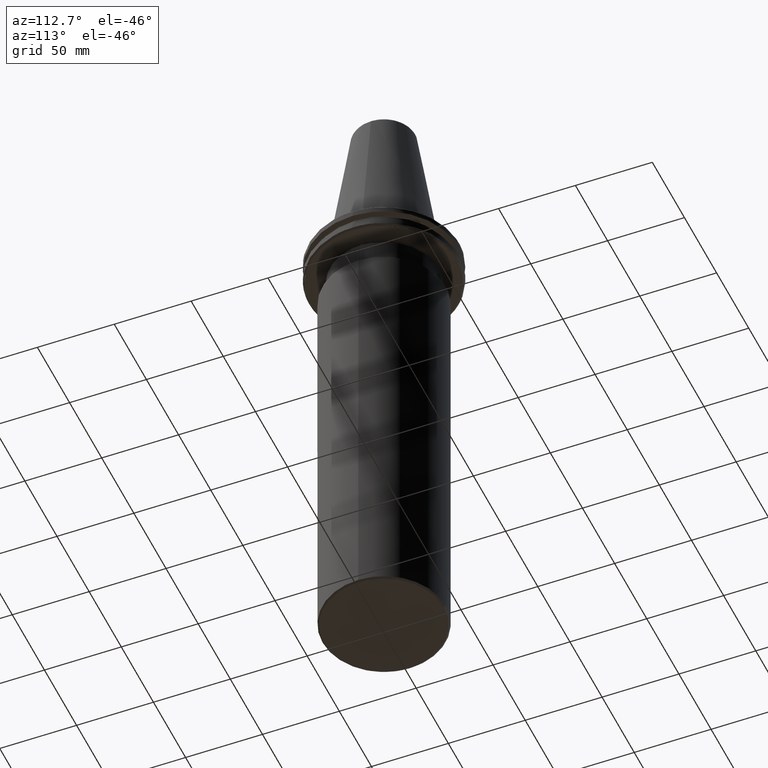
[diagram: clean part render]
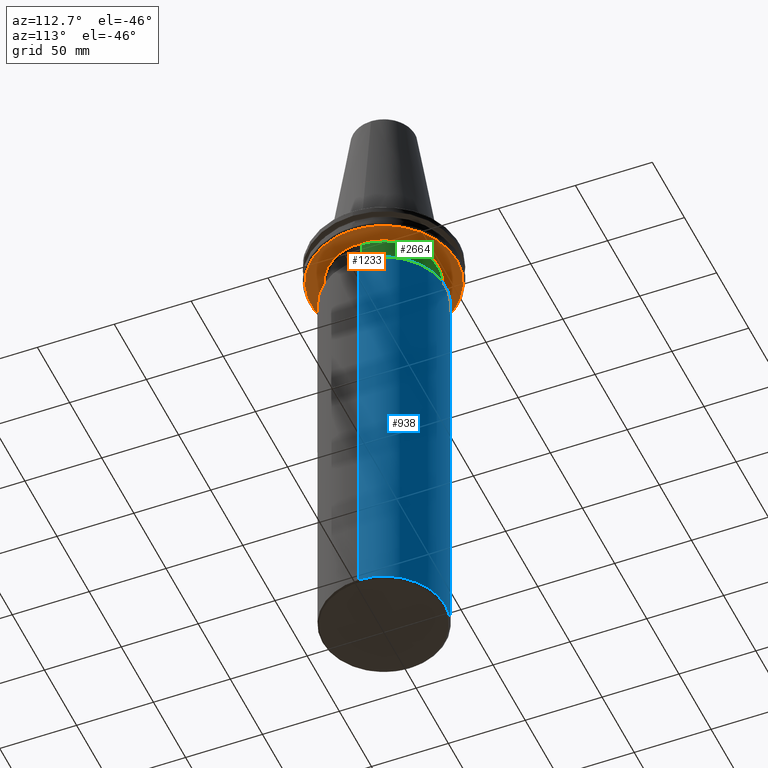
[diagram: same view with three faces highlighted in distinct colors, each labeled with its STEP entity id]
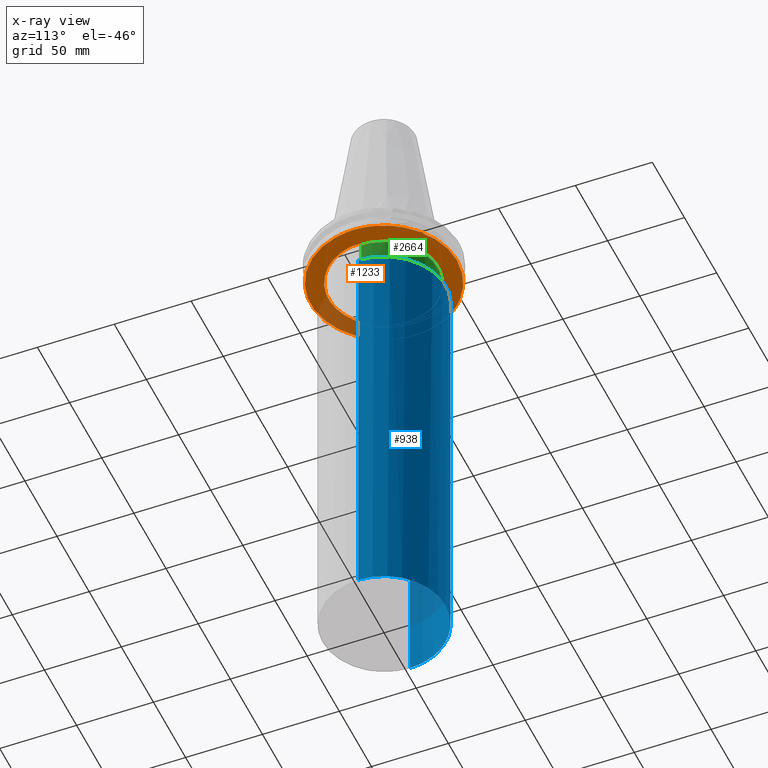
[diagram: x-ray of the same camera — body ghosted, the three highlighted faces saturated]
A machine part, auxiliary view with three faces highlighted in distinct colors.
The next image is the same camera in x-ray (body ghosted, the three faces saturated) — at least one of them is partly hidden behind the body in this view.
Their STEP definitions:

[orange] entity #1233 — the highlighted planar face has unit normal (0, 0, -1).
#13 = CARTESIAN_POINT ( 'NONE',  ( 24.50233304969292900, 40.79115049132191500, -19.10000000000000500 ) ) ;
#22 = CARTESIAN_POINT ( 'NONE',  ( 24.18776650256299000, 40.97956592006652000, -19.10000000000000500 ) ) ;
#28 = CARTESIAN_POINT ( 'NONE',  ( 23.44915669443227200, 41.41046852583234300, -19.10000000000000500 ) ) ;
#29 = CARTESIAN_POINT ( 'NONE',  ( -30.74210803604322000, -18.73307409569361700, -19.10000000000000100 ) ) ;
#35 = CARTESIAN_POINT ( 'NONE',  ( 21.95345228552716700, 42.23734015881094500, -19.10000000000000500 ) ) ;
#40 = CARTESIAN_POINT ( 'NONE',  ( 20.63973171907657900, 42.88620113813023900, -19.10000000000000900 ) ) ;
#46 = CARTESIAN_POINT ( 'NONE',  ( 32.82499425408121100, 34.50792617421171100, -19.10000000000000500 ) ) ;
#64 = CARTESIAN_POINT ( 'NONE',  ( 19.69421577141492800, 43.31753143489083200, -19.10000000000000500 ) ) ;
#66 = CARTESIAN_POINT ( 'NONE',  ( 42.53277874157888800, 21.37544343126220500, -19.10000000000000900 ) ) ;
#72 = CARTESIAN_POINT ( 'NONE',  ( 19.64105775858945100, 43.34165811582305100, -19.10000000000000900 ) ) ;
#73 = CARTESIAN_POINT ( 'NONE',  ( 14.35876954924802500, -33.02146576844886300, -19.10000000000000900 ) ) ;
#75 = CARTESIAN_POINT ( 'NONE',  ( -33.04293178105576300, -34.25236535246320100, -19.10000000000000500 ) ) ;
#76 = CARTESIAN_POINT ( 'NONE',  ( 19.53216097461157500, 43.39084235519819500, -19.10000000000000100 ) ) ;
#78 = CARTESIAN_POINT ( 'NONE',  ( 19.36869561264892800, 43.46430390230612800, -19.10000000000000100 ) ) ;
#83 = CARTESIAN_POINT ( 'NONE',  ( 18.98643513276526600, 43.63351049520797900, -19.10000000000000500 ) ) ;
#85 = CARTESIAN_POINT ( 'NONE',  ( -30.85285385619979300, -18.55011987088070000, -19.10000000000000900 ) ) ;
#87 = CARTESIAN_POINT ( 'NONE',  ( 18.21854896511472800, 43.96310894627836800, -19.10000000000000900 ) ) ;
#90 = CARTESIAN_POINT ( 'NONE',  ( 16.66931579828063500, 44.58704690948568600, -19.10000000000000500 ) ) ;
#97 = CARTESIAN_POINT ( 'NONE',  ( 15.31832594408059100, 45.06140698263472900, -19.10000000000001200 ) ) ;
#104 = CARTESIAN_POINT ( 'NONE',  ( 12.58557862074794000, 45.92953526851350400, -19.10000000000000500 ) ) ;
#106 = CARTESIAN_POINT ( 'NONE',  ( 10.88403322717663500, -34.33448456366802000, -19.10000000000000900 ) ) ;
#111 = CARTESIAN_POINT ( 'NONE',  ( 10.73456591713719300, 46.39711397970397400, -19.10000000000000500 ) ) ;
#114 = CARTESIAN_POINT ( 'NONE',  ( 8.797719920410600000, 46.76398851016824700, -19.10000000000000500 ) ) ;
#121 = CARTESIAN_POINT ( 'NONE',  ( 8.736225942364694000, 46.77551714111499600, -19.10000000000000900 ) ) ;
#125 = CARTESIAN_POINT ( 'NONE',  ( 8.615996470641381000, 46.79781295841750900, -19.10000000000000500 ) ) ;
#131 = CARTESIAN_POINT ( 'NONE',  ( 8.435609072310132500, 46.83090646071303100, -19.09999999999999800 ) ) ;
#136 = CARTESIAN_POINT ( 'NONE',  ( 8.014402807646559900, 46.90567306712805600, -19.10000000000000500 ) ) ;
#137 = EDGE_CURVE ( 'NONE', #2124, #1897, #160, .T. ) ;
#146 = CIRCLE ( 'NONE', #152, 47.58431457505076900 ) ;
#151 = CARTESIAN_POINT ( 'NONE',  ( 7.170780937423438100, 47.04540001752668800, -19.10000000000000900 ) ) ;
#152 = AXIS2_PLACEMENT_3D ( 'NONE', #3349, #3353, #176 ) ;
#157 = CARTESIAN_POINT ( 'NONE',  ( -34.44459152367806400, -32.83054084352279000, -19.10000000000000100 ) ) ;
#160 = CIRCLE ( 'NONE', #1542, 47.58431457505076900 ) ;
#163 = CARTESIAN_POINT ( 'NONE',  ( 5.478699833393303500, 47.28562886859818800, -19.10000000000000100 ) ) ;
#168 = CARTESIAN_POINT ( 'NONE',  ( 29.00433579293829600, 37.72372139860291900, -19.10000000000000500 ) ) ;
#174 = CARTESIAN_POINT ( 'NONE',  ( 4.020051978080799900, 47.42429636998678400, -19.10000000000000900 ) ) ;
#176 = DIRECTION ( 'NONE',  ( 1.000000000000000000, 0.0000000000000000000, 0.0000000000000000000 ) ) ;
#178 = CARTESIAN_POINT ( 'NONE',  ( 2.921919774953071900, 47.49467552483471900, -19.09999999999999800 ) ) ;
#185 = CARTESIAN_POINT ( 'NONE',  ( 2.795956690231360800, 47.50226303628877400, -19.10000000000000100 ) ) ;
#190 = CARTESIAN_POINT ( 'NONE',  ( 2.547980808395235600, 47.51621399213986100, -19.10000000000000100 ) ) ;
#200 = CARTESIAN_POINT ( 'NONE',  ( 2.176018877763047600, 47.53568396421928100, -19.10000000000000900 ) ) ;
#204 = CARTESIAN_POINT ( 'NONE',  ( 1.308120951141947600, 47.57091866719089500, -19.10000000000000900 ) ) ;
#210 = CARTESIAN_POINT ( 'NONE',  ( -0.4276219226842210000, 47.60060714561257100, -19.10000000000000500 ) ) ;
#216 = CARTESIAN_POINT ( 'NONE',  ( -1.915310706964912900, 47.55614425136573000, -19.10000000000000900 ) ) ;
#224 = CARTESIAN_POINT ( 'NONE',  ( -3.155000903945456500, 47.48025286090142300, -19.10000000000000900 ) ) ;
#226 = B_SPLINE_CURVE_WITH_KNOTS ( 'NONE', 3,
 ( #608, #455, #423, #417, #409, #407, #401, #396, #388, #379, #371, #369, #366, #361, #354, #335, #325, #321, #317, #311, #299, #278, #270, #266, #259, #255, #240, #234, #228, #224, #216, #210, #204, #200, #190, #185, #178, #174, #163, #151, #136, #131, #125, #121, #114, #111, #104, #97, #90, #87, #83, #78, #76, #72, #64, #40, #35, #28, #22, #13, #289, #1725, #1978, #3067, #2158, #168, #2337, #3325, #2611, #46, #1522, #2489, #3554, #964, #2723, #1432, #2497, #3424, #1966, #2910, #2980, #758, #2986, #888, #66, #347, #330, #2879, #826, #2213, #643, #2067, #1431, #1425 ),
 .UNSPECIFIED., .F., .F.,
 ( 4, 1, 1, 1, 1, 2, 2, 1, 1, 1, 2, 2, 1, 1, 2, 2, 2, 1, 1, 2, 2, 1, 1, 1, 2, 2, 1, 1, 1, 1, 2, 2, 2, 1, 1, 1, 1, 2, 2, 1, 1, 1, 2, 2, 1, 1, 2, 2, 2, 1, 1, 2, 2, 1, 1, 1, 2, 2, 1, 1, 1, 1, 2, 2, 4 ),
 ( 0.0000000000000000000, 0.03124999999999664900, 0.04687499999999486500, 0.05468749999999397000, 0.05859374999999363000, 0.06054687499999357500, 0.06249999999999351900, 0.09374999999999429600, 0.1093749999999947100, 0.1171874999999949100, 0.1210937499999949100, 0.1249999999999949200, 0.1562499999999948100, 0.1718749999999947500, 0.1796874999999947300, 0.1874999999999946700, 0.2499999999999945600, 0.2812499999999945000, 0.2968749999999944500, 0.3046874999999944500, 0.3124999999999944500, 0.3437499999999945000, 0.3593749999999945600, 0.3671874999999945600, 0.3710937499999945600, 0.3749999999999945600, 0.4062499999999947300, 0.4218749999999947800, 0.4296874999999947800, 0.4335937499999947300, 0.4355468749999947800, 0.4374999999999947800, 0.4999999999999950000, 0.5312499999999952300, 0.5468749999999952300, 0.5546874999999952300, 0.5585937499999952300, 0.5605468749999953400, 0.5624999999999953400, 0.5937499999999945600, 0.6093749999999941200, 0.6171874999999938900, 0.6210937499999937800, 0.6249999999999936700, 0.6562499999999931200, 0.6718749999999927800, 0.6796874999999926700, 0.6874999999999926700, 0.7499999999999925600, 0.7812499999999927800, 0.7968749999999927800, 0.8046874999999927800, 0.8124999999999926700, 0.8437499999999924500, 0.8593749999999923400, 0.8671874999999922300, 0.8710937499999923400, 0.8749999999999923400, 0.9062499999999934500, 0.9218749999999938900, 0.9296874999999942300, 0.9335937499999944500, 0.9355468749999945600, 0.9374999999999946700, 1.000000000000000000 ),
 .UNSPECIFIED. ) ;
#228 = CARTESIAN_POINT ( 'NONE',  ( -3.406815653544069900, 47.46286484761140700, -19.10000000000000900 ) ) ;
#234 = CARTESIAN_POINT ( 'NONE',  ( -3.905819226031873400, 47.42442718986811200, -19.10000000000000500 ) ) ;
#240 = CARTESIAN_POINT ( 'NONE',  ( -4.653575368256655400, 47.36089933689269300, -19.10000000000000500 ) ) ;
#242 = CARTESIAN_POINT ( 'NONE',  ( -31.21774824875838700, -17.93324988770993800, -19.10000000000000900 ) ) ;
#255 = CARTESIAN_POINT ( 'NONE',  ( -6.393095184566051100, 47.17156811542699300, -19.10000000000000900 ) ) ;
#259 = CARTESIAN_POINT ( 'NONE',  ( -7.875121571891069600, 46.93882781498823000, -19.10000000000000100 ) ) ;
#266 = CARTESIAN_POINT ( 'NONE',  ( -10.82718688243038800, 46.37940535234366000, -19.10000000000000500 ) ) ;
#270 = CARTESIAN_POINT ( 'NONE',  ( -12.76496267438223200, 45.88395211695184600, -19.09999999999999800 ) ) ;
#278 = CARTESIAN_POINT ( 'NONE',  ( -14.90863721726842800, 45.18917973414403400, -19.10000000000000500 ) ) ;
#289 = CARTESIAN_POINT ( 'NONE',  ( 24.71160396700230100, 40.66470845362184100, -19.10000000000000100 ) ) ;
#297 = CARTESIAN_POINT ( 'NONE',  ( 44.91986629715702900, -15.78375219148239400, -19.10000000000000500 ) ) ;
#299 = CARTESIAN_POINT ( 'NONE',  ( -15.14249711230291600, 45.11134788466759500, -19.09999999999999800 ) ) ;
#311 = CARTESIAN_POINT ( 'NONE',  ( -15.61238905962479400, 44.95090609541712500, -19.10000000000000500 ) ) ;
#312 = CARTESIAN_POINT ( 'NONE',  ( -45.15259770386980900, -15.21685122227706400, -19.10000000000000100 ) ) ;
#317 = CARTESIAN_POINT ( 'NONE',  ( -16.31507297257428800, 44.70483040319042100, -19.10000000000000100 ) ) ;
#321 = CARTESIAN_POINT ( 'NONE',  ( -17.93959071322330000, 44.09276272953813700, -19.10000000000000500 ) ) ;
#325 = CARTESIAN_POINT ( 'NONE',  ( -19.30618639452273300, 43.50317719476752400, -19.10000000000000100 ) ) ;
#327 = CARTESIAN_POINT ( 'NONE',  ( 9.744719391317030200, -34.65604843017973000, -19.10000000000000500 ) ) ;
#330 = CARTESIAN_POINT ( 'NONE',  ( 43.60702238820626100, 19.04732045925824500, -19.10000000000000500 ) ) ;
#334 = CARTESIAN_POINT ( 'NONE',  ( -38.91719004522487800, -27.38454355136135400, -19.10000000000000900 ) ) ;
#335 = CARTESIAN_POINT ( 'NONE',  ( -20.31820910729746600, 43.02850999358383200, -19.10000000000000500 ) ) ;
#339 = EDGE_CURVE ( 'NONE', #2630, #2657, #226, .T. ) ;
#340 = ORIENTED_EDGE ( 'NONE', *, *, #805, .T. ) ;
#341 = CARTESIAN_POINT ( 'NONE',  ( 42.75923279349206800, -20.91773531037192800, -19.10000000000000500 ) ) ;
#347 = CARTESIAN_POINT ( 'NONE',  ( 43.26075550676694800, 19.82919047881128400, -19.10000000000000500 ) ) ;
#353 = CARTESIAN_POINT ( 'NONE',  ( 43.30670207663172300, -19.71796403964764000, -19.10000000000000100 ) ) ;
#354 = CARTESIAN_POINT ( 'NONE',  ( -20.42700269620342000, 42.97696412136785700, -19.09999999999999800 ) ) ;
#361 = CARTESIAN_POINT ( 'NONE',  ( -20.64756274229976500, 42.87144079788518500, -19.10000000000000500 ) ) ;
#366 = CARTESIAN_POINT ( 'NONE',  ( -20.97772230054858200, 42.71191916152597700, -19.10000000000000100 ) ) ;
#369 = CARTESIAN_POINT ( 'NONE',  ( -21.74333102685920200, 42.33104545207474700, -19.10000000000000100 ) ) ;
#371 = CARTESIAN_POINT ( 'NONE',  ( -23.25549417440079800, 41.53467180138673600, -19.10000000000000500 ) ) ;
#375 = CARTESIAN_POINT ( 'NONE',  ( -33.72344533852622600, -12.59882864832744800, -19.10000000000000900 ) ) ;
#379 = CARTESIAN_POINT ( 'NONE',  ( -24.51896949215701900, 40.79270656059319600, -19.10000000000000100 ) ) ;
#388 = CARTESIAN_POINT ( 'NONE',  ( -25.39850626193174300, 40.23911708929993100, -19.10000000000000100 ) ) ;
#396 = CARTESIAN_POINT ( 'NONE',  ( -25.44784265904079100, 40.20793179859312300, -19.09999999999999400 ) ) ;
#401 = CARTESIAN_POINT ( 'NONE',  ( -25.54871977331017500, 40.14390888365007000, -19.10000000000000500 ) ) ;
#407 = CARTESIAN_POINT ( 'NONE',  ( -25.69983870482903400, 40.04760097354591900, -19.10000000000000900 ) ) ;
#409 = CARTESIAN_POINT ( 'NONE',  ( -26.05107236584310100, 39.82096775280908200, -19.10000000000000500 ) ) ;
#417 = CARTESIAN_POINT ( 'NONE',  ( -26.74803097108493000, 39.36004225602716400, -19.10000000000000500 ) ) ;
#419 = CARTESIAN_POINT ( 'NONE',  ( -30.77868398854626300, -18.67291512089957100, -19.09999999999999800 ) ) ;
#423 = CARTESIAN_POINT ( 'NONE',  ( -28.11991331442331800, 38.40755504123007600, -19.10000000000000500 ) ) ;
#436 = VECTOR ( 'NONE', #2969, 1000.000000000000000 ) ;
#438 = CARTESIAN_POINT ( 'NONE',  ( -31.71004401913094700, -17.06061466561993400, -19.10000000000000500 ) ) ;
#455 = CARTESIAN_POINT ( 'NONE',  ( -29.25803840789287200, 37.53861819214704800, -19.09999999999999800 ) ) ;
#486 = CARTESIAN_POINT ( 'NONE',  ( -15.36529361440421600, 32.55624365545931200, -19.10000000000000500 ) ) ;
#508 = CARTESIAN_POINT ( 'NONE',  ( -32.63009163219111700, -15.28397988874103000, -19.09999999999999800 ) ) ;
#511 = B_SPLINE_CURVE_WITH_KNOTS ( 'NONE', 3,
 ( #1326, #1598, #297, #571, #1339, #1337, #661, #1399, #1973, #353, #341, #1319, #1414, #766, #1252, #1316, #1313, #1227, #1281, #1274, #1191, #1236, #1234, #1363, #1209, #1197, #3463, #1178, #1367, #3328, #3375, #3419, #3359, #3480, #3319, #790, #780, #3063, #3089, #2274, #807, #853, #844, #775, #820, #813, #1055, #1041, #1097, #3492, #3504, #3317, #3443, #3455, #3357, #3293, #3310, #3384, #1092, #1087, #553, #997, #972, #962, #955, #949, #943, #1019, #1014, #1005, #871, #541, #535, #838, #911, #905, #738, #685, #1460, #1051, #3534, #3559, #3540, #593, #75, #641, #3590, #157, #3402, #3301, #1143, #1794, #2575, #334, #3489, #1343, #1696, #1950, #1964, #2345, #2737, #2673, #2845, #2865, #3345, #2545, #1371, #1848, #312, #1440 ),
 .UNSPECIFIED., .F., .F.,
 ( 4, 1, 1, 1, 1, 1, 2, 2, 1, 1, 1, 1, 2, 2, 1, 1, 1, 1, 2, 2, 2, 1, 1, 1, 1, 2, 2, 1, 1, 1, 1, 2, 2, 1, 1, 1, 1, 1, 2, 2, 2, 1, 1, 1, 1, 1, 2, 2, 1, 1, 1, 1, 2, 2, 1, 1, 1, 1, 2, 2, 2, 1, 1, 1, 1, 2, 2, 1, 1, 1, 1, 2, 2, 1, 1, 1, 1, 1, 2, 2, 4 ),
 ( 0.0000000000000000000, 0.03124999999999778000, 0.04687499999999657900, 0.05468749999999601700, 0.05859374999999566300, 0.06054687499999552400, 0.06152343749999545500, 0.06249999999999538600, 0.09374999999999456000, 0.1093749999999941200, 0.1171874999999938500, 0.1210937499999938100, 0.1230468749999937500, 0.1249999999999937000, 0.1562499999999939800, 0.1718749999999941700, 0.1796874999999942000, 0.1835937499999941700, 0.1855468749999942000, 0.1874999999999942300, 0.2499999999999952800, 0.2812499999999958400, 0.2968749999999960600, 0.3046874999999961700, 0.3085937499999962800, 0.3105468749999962300, 0.3124999999999962300, 0.3437499999999963900, 0.3593749999999965000, 0.3671874999999965600, 0.3710937499999966100, 0.3730468749999966100, 0.3749999999999966700, 0.4062499999999971700, 0.4218749999999974500, 0.4296874999999975600, 0.4335937499999976100, 0.4355468749999976100, 0.4365234374999976700, 0.4374999999999977200, 0.4999999999999995600, 0.5312500000000004400, 0.5468750000000008900, 0.5546875000000011100, 0.5585937500000011100, 0.5605468750000012200, 0.5615234375000013300, 0.5625000000000013300, 0.5937500000000006700, 0.6093750000000003300, 0.6171875000000002200, 0.6210937500000001100, 0.6230468750000001100, 0.6250000000000001100, 0.6562499999999993300, 0.6718749999999988900, 0.6796874999999987800, 0.6835937499999985600, 0.6855468749999985600, 0.6874999999999985600, 0.7499999999999981100, 0.7812499999999978900, 0.7968749999999977800, 0.8046874999999976700, 0.8085937499999975600, 0.8105468749999974500, 0.8124999999999973400, 0.8437499999999964500, 0.8593749999999958900, 0.8671874999999955600, 0.8710937499999953400, 0.8730468749999953400, 0.8749999999999953400, 0.9062499999999948900, 0.9218749999999946700, 0.9296874999999945600, 0.9335937499999945600, 0.9355468749999945600, 0.9365234374999946700, 0.9374999999999946700, 1.000000000000000000 ),
 .UNSPECIFIED. ) ;
#528 = ORIENTED_EDGE ( 'NONE', *, *, #2452, .T. ) ;
#535 = CARTESIAN_POINT ( 'NONE',  ( -16.01819460261143000, -44.82648295049219200, -19.10000000000000900 ) ) ;
#541 = CARTESIAN_POINT ( 'NONE',  ( -14.69055632917383000, -45.25992943446074400, -19.10000000000000100 ) ) ;
#553 = CARTESIAN_POINT ( 'NONE',  ( -7.064305541282759100, -47.05712494446966300, -19.10000000000000900 ) ) ;
#571 = CARTESIAN_POINT ( 'NONE',  ( 44.14400760328782500, -17.78327443843682300, -19.10000000000000500 ) ) ;
#574 = FACE_OUTER_BOUND ( 'NONE', #3049, .T. ) ;
#575 = ORIENTED_EDGE ( 'NONE', *, *, #1986, .F. ) ;
#593 = CARTESIAN_POINT ( 'NONE',  ( -31.34702148197053600, -35.84352815055592600, -19.10000000000000500 ) ) ;
#608 = CARTESIAN_POINT ( 'NONE',  ( -29.99999999999999600, 36.93598507658065700, -19.10000000000000500 ) ) ;
#641 = CARTESIAN_POINT ( 'NONE',  ( -33.86642685690727500, -33.42950363247387500, -19.10000000000000500 ) ) ;
#643 = CARTESIAN_POINT ( 'NONE',  ( 43.91854959793744200, 18.31478907998181800, -19.10000000000000100 ) ) ;
#661 = CARTESIAN_POINT ( 'NONE',  ( 43.40111667457645700, -19.50949723452300700, -19.10000000000000900 ) ) ;
#670 = CARTESIAN_POINT ( 'NONE',  ( -30.96353237261146400, -18.36564695716757000, -19.10000000000000500 ) ) ;
#676 = CARTESIAN_POINT ( 'NONE',  ( 45.81642165836817100, 12.85000000000000000, -19.10000000000000100 ) ) ;
#677 = ORIENTED_EDGE ( 'NONE', *, *, #137, .F. ) ;
#685 = CARTESIAN_POINT ( 'NONE',  ( -21.72237678637516800, -42.33689194281741700, -19.10000000000000500 ) ) ;
#701 = CIRCLE ( 'NONE', #2924, 47.58431457505076900 ) ;
#719 = EDGE_CURVE ( 'NONE', #2173, #2449, #701, .T. ) ;
#738 = CARTESIAN_POINT ( 'NONE',  ( -21.50308199364791400, -42.44918006592077100, -19.10000000000000500 ) ) ;
#758 = CARTESIAN_POINT ( 'NONE',  ( 41.24130619434603800, 23.73682857431735700, -19.10000000000000900 ) ) ;
#759 = PLANE ( 'NONE',  #2419 ) ;
#766 = CARTESIAN_POINT ( 'NONE',  ( 40.17757738671358000, -25.49926469668890400, -19.10000000000000500 ) ) ;
#775 = CARTESIAN_POINT ( 'NONE',  ( 14.84463130699052900, -45.20962530651281200, -19.10000000000000900 ) ) ;
#780 = CARTESIAN_POINT ( 'NONE',  ( 20.84887959193406800, -42.79392924822951000, -19.10000000000000900 ) ) ;
#790 = CARTESIAN_POINT ( 'NONE',  ( 22.08702858398671200, -42.14779738270512200, -19.10000000000000500 ) ) ;
#805 = EDGE_CURVE ( 'NONE', #2124, #2449, #511, .T. ) ;
#807 = CARTESIAN_POINT ( 'NONE',  ( 15.31431248954055300, -45.05316046877541000, -19.10000000000000100 ) ) ;
#810 = DIRECTION ( 'NONE',  ( -1.000000000000000000, 0.0000000000000000000, -0.0000000000000000000 ) ) ;
#813 = CARTESIAN_POINT ( 'NONE',  ( 11.71142353891909200, -46.15177667591264300, -19.10000000000000500 ) ) ;
#820 = CARTESIAN_POINT ( 'NONE',  ( 13.55299495753909000, -45.63134899766063100, -19.10000000000000900 ) ) ;
#823 = DIRECTION ( 'NONE',  ( 0.0000000000000000000, 0.0000000000000000000, -1.000000000000000000 ) ) ;
#826 = CARTESIAN_POINT ( 'NONE',  ( 43.84707740126011500, 18.48525077571082100, -19.10000000000000500 ) ) ;
#838 = CARTESIAN_POINT ( 'NONE',  ( -17.86104397993744900, -44.13944229614413200, -19.10000000000000500 ) ) ;
#844 = CARTESIAN_POINT ( 'NONE',  ( 14.92480319435984300, -45.18322660194292000, -19.10000000000000500 ) ) ;
#852 = CARTESIAN_POINT ( 'NONE',  ( -44.93810529642089300, 15.98161967225063900, -19.10000000000000100 ) ) ;
#853 = CARTESIAN_POINT ( 'NONE',  ( 15.08070599188592800, -45.13143456946085100, -19.10000000000000900 ) ) ;
#871 = CARTESIAN_POINT ( 'NONE',  ( -14.61660763804840700, -45.28386166225934100, -19.10000000000000900 ) ) ;
#888 = CARTESIAN_POINT ( 'NONE',  ( 41.84803922460157100, 22.67082524195410900, -19.10000000000000100 ) ) ;
#892 = CARTESIAN_POINT ( 'NONE',  ( -36.00000000000001400, 0.0000000000000000000, -19.10000000000000500 ) ) ;
#896 = B_SPLINE_CURVE_WITH_KNOTS ( 'NONE', 3,
 ( #2639, #3076, #2918, #2406, #2270, #2342, #2102, #2006, #1994, #1194, #1402, #1309, #1373, #1205, #1105, #1008, #1096, #959, #375, #947, #508, #438, #242, #670, #85, #419, #29, #3624, #3583, #3576, #3393, #3347, #3331, #3521, #3506, #3499, #3495, #3488, #3477, #3459, #3452, #3444, #3432, #3416, #3150, #3071, #3061, #2998, #2977, #2972, #2961, #2951, #2940, #2927, #3405, #2895, #2867, #2834, #2824, #2810, #2797, #2740, #2711, #2706, #2697, #3254, #2682, #2671, #2653, #2615, #2602, #2572, #2548, #2537, #327, #106, #3242, #73, #2532, #2466, #2459, #2455, #2450, #2442, #2436, #2430, #2394, #3238, #2377, #2363, #2354, #2277, #2262, #2190, #2172, #2167, #2141, #2127, #3231, #2110, #2094, #2079, #2069, #2054, #1985, #1903, #1894, #1889, #1881, #3208, #1869, #1853, #1838, #1827 ),
 .UNSPECIFIED., .F., .F.,
 ( 4, 1, 1, 1, 1, 1, 2, 2, 1, 1, 1, 1, 1, 2, 2, 1, 1, 1, 1, 2, 2, 2, 1, 1, 1, 1, 2, 2, 1, 1, 1, 1, 1, 2, 2, 1, 1, 1, 1, 1, 2, 2, 2, 1, 1, 1, 1, 1, 2, 2, 1, 1, 1, 1, 1, 2, 2, 1, 1, 1, 1, 2, 2, 2, 1, 1, 1, 1, 2, 2, 1, 1, 1, 1, 1, 2, 2, 1, 1, 1, 1, 1, 2, 2, 4 ),
 ( 0.0000000000000000000, 0.03124999999999931300, 0.04687499999999897300, 0.05468749999999877200, 0.05859374999999866800, 0.06054687499999860500, 0.06152343749999858400, 0.06249999999999856400, 0.09374999999999747400, 0.1093749999999968800, 0.1171874999999966000, 0.1210937499999964300, 0.1230468749999962900, 0.1240234374999962700, 0.1249999999999962300, 0.1562499999999955300, 0.1718749999999951700, 0.1796874999999950000, 0.1835937499999949500, 0.1855468749999948700, 0.1874999999999948100, 0.2499999999999930300, 0.2812499999999922300, 0.2968749999999918400, 0.3046874999999916700, 0.3085937499999916200, 0.3105468749999915600, 0.3124999999999915100, 0.3437499999999911700, 0.3593749999999910600, 0.3671874999999909500, 0.3710937499999909000, 0.3730468749999909000, 0.3740234374999909000, 0.3749999999999909000, 0.4062499999999899500, 0.4218749999999895100, 0.4296874999999893400, 0.4335937499999892300, 0.4355468749999892300, 0.4365234374999891200, 0.4374999999999890600, 0.4999999999999895600, 0.5312499999999899000, 0.5468749999999900100, 0.5546874999999900100, 0.5585937499999900100, 0.5605468749999901200, 0.5615234374999901200, 0.5624999999999901200, 0.5937499999999897900, 0.6093749999999896700, 0.6171874999999896700, 0.6210937499999896700, 0.6230468749999897900, 0.6240234374999897900, 0.6249999999999899000, 0.6562499999999911200, 0.6718749999999916700, 0.6796874999999919000, 0.6835937499999921200, 0.6855468749999921200, 0.6874999999999922300, 0.7499999999999971100, 0.7812499999999996700, 0.7968750000000008900, 0.8046875000000015500, 0.8085937500000017800, 0.8105468750000018900, 0.8125000000000018900, 0.8437500000000033300, 0.8593750000000041100, 0.8671875000000044400, 0.8710937500000047700, 0.8730468750000047700, 0.8740234375000047700, 0.8750000000000047700, 0.9062500000000046600, 0.9218750000000044400, 0.9296875000000044400, 0.9335937500000044400, 0.9355468750000044400, 0.9365234375000044400, 0.9375000000000043300, 1.000000000000000000 ),
 .UNSPECIFIED. ) ;
#905 = CARTESIAN_POINT ( 'NONE',  ( -20.98967348492718400, -42.70707776895816500, -19.10000000000000500 ) ) ;
#911 = CARTESIAN_POINT ( 'NONE',  ( -19.95597383139069700, -43.20644150488462300, -19.10000000000000900 ) ) ;
#927 = DIRECTION ( 'NONE',  ( 1.000000000000000000, 0.0000000000000000000, 0.0000000000000000000 ) ) ;
#943 = CARTESIAN_POINT ( 'NONE',  ( -12.63026754929554600, -45.88542074854634500, -19.10000000000000500 ) ) ;
#947 = CARTESIAN_POINT ( 'NONE',  ( -33.30805713878271500, -13.70738265250389900, -19.10000000000000100 ) ) ;
#949 = CARTESIAN_POINT ( 'NONE',  ( -10.47107321257776200, -46.44890181901310200, -19.10000000000000500 ) ) ;
#955 = CARTESIAN_POINT ( 'NONE',  ( -8.593580539630483600, -46.81937647076279800, -19.10000000000000500 ) ) ;
#959 = CARTESIAN_POINT ( 'NONE',  ( -33.73508684192724900, -12.56761991596333200, -19.10000000000000900 ) ) ;
#962 = CARTESIAN_POINT ( 'NONE',  ( -7.290541769874658400, -47.02251111249497500, -19.10000000000000500 ) ) ;
#964 = CARTESIAN_POINT ( 'NONE',  ( 37.49764701077705800, 29.29604387573100900, -19.10000000000000500 ) ) ;
#970 = DIRECTION ( 'NONE',  ( -0.0000000000000000000, -0.0000000000000000000, 1.000000000000000000 ) ) ;
#972 = CARTESIAN_POINT ( 'NONE',  ( -7.254117645265835400, -47.02814260653002500, -19.10000000000000900 ) ) ;
#987 = CARTESIAN_POINT ( 'NONE',  ( 0.0000000000000000000, 0.0000000000000000000, -19.10000000000000500 ) ) ;
#997 = CARTESIAN_POINT ( 'NONE',  ( -7.178197001860739100, -47.03979101429536800, -19.10000000000000900 ) ) ;
#998 = CARTESIAN_POINT ( 'NONE',  ( -36.00000000000002800, 2.100496096828665700, -19.10000000000000500 ) ) ;
#1005 = CARTESIAN_POINT ( 'NONE',  ( -14.46442323065742200, -45.33270475704076600, -19.10000000000000500 ) ) ;
#1008 = CARTESIAN_POINT ( 'NONE',  ( -33.79515638687490800, -12.40548029359702300, -19.10000000000000900 ) ) ;
#1014 = CARTESIAN_POINT ( 'NONE',  ( -14.23600727233111000, -45.40538341419763000, -19.10000000000000500 ) ) ;
#1019 = CARTESIAN_POINT ( 'NONE',  ( -13.70206127222429000, -45.57086505245657500, -19.10000000000000100 ) ) ;
#1033 = ORIENTED_EDGE ( 'NONE', *, *, #1665, .T. ) ;
#1041 = CARTESIAN_POINT ( 'NONE',  ( 8.433288832968020900, -46.83300009518481500, -19.10000000000000500 ) ) ;
#1046 = CARTESIAN_POINT ( 'NONE',  ( -15.33516355976605400, 32.57044539424847300, -19.10000000000000500 ) ) ;
#1051 = CARTESIAN_POINT ( 'NONE',  ( -21.94033403670224300, -42.22434829679992400, -19.10000000000000500 ) ) ;
#1055 = CARTESIAN_POINT ( 'NONE',  ( 9.531275137177059900, -46.62778514758635100, -19.10000000000000500 ) ) ;
#1056 = CARTESIAN_POINT ( 'NONE',  ( -35.81759002901258500, 4.184858326908430300, -19.10000000000000900 ) ) ;
#1066 = CARTESIAN_POINT ( 'NONE',  ( -35.44706977544429800, 6.285402758416426000, -19.10000000000000500 ) ) ;
#1080 = CARTESIAN_POINT ( 'NONE',  ( -35.44070363621551000, 6.321209025655425000, -19.10000000000000100 ) ) ;
#1087 = CARTESIAN_POINT ( 'NONE',  ( -6.798485331641742800, -47.09660001122696800, -19.10000000000000900 ) ) ;
#1092 = CARTESIAN_POINT ( 'NONE',  ( -6.266551039190168200, -47.17166706347747900, -19.10000000000000100 ) ) ;
#1093 = CARTESIAN_POINT ( 'NONE',  ( -35.42849359951963400, 6.389291890181641300, -19.10000000000000900 ) ) ;
#1096 = CARTESIAN_POINT ( 'NONE',  ( -33.75917214751383000, -12.50277965873146400, -19.10000000000000100 ) ) ;
#1097 = CARTESIAN_POINT ( 'NONE',  ( 7.882317655028997700, -46.92741024692442400, -19.10000000000000100 ) ) ;
#1098 = CARTESIAN_POINT ( 'NONE',  ( -35.41003495860209700, 6.491376716081130200, -19.10000000000000900 ) ) ;
#1105 = CARTESIAN_POINT ( 'NONE',  ( -33.87811357891914800, -12.17817558661012500, -19.10000000000001200 ) ) ;
#1121 = CARTESIAN_POINT ( 'NONE',  ( -35.36595969534519000, 6.729298346951138900, -19.10000000000000900 ) ) ;
#1143 = CARTESIAN_POINT ( 'NONE',  ( -35.57383602575539800, -31.63065524385431400, -19.10000000000000100 ) ) ;
#1172 = CARTESIAN_POINT ( 'NONE',  ( -35.27378876436723900, 7.204036423775878700, -19.10000000000000500 ) ) ;
#1178 = CARTESIAN_POINT ( 'NONE',  ( 30.87175777942523800, -36.30849107487021900, -19.10000000000000100 ) ) ;
#1191 = CARTESIAN_POINT ( 'NONE',  ( 36.21214877210109500, -30.88232116247052500, -19.10000000000000900 ) ) ;
#1194 = CARTESIAN_POINT ( 'NONE',  ( -35.45877654104138800, -6.219029431584309500, -19.10000000000000500 ) ) ;
#1197 = CARTESIAN_POINT ( 'NONE',  ( 34.73067266395411000, -32.52774543433425700, -19.10000000000000100 ) ) ;
#1198 = CARTESIAN_POINT ( 'NONE',  ( -34.60819185350487000, 10.02151970709725000, -19.10000000000000500 ) ) ;
#1204 = LINE ( 'NONE', #3249, #436 ) ;
#1205 = CARTESIAN_POINT ( 'NONE',  ( -34.04000383048126800, -11.72247475261026000, -19.10000000000000500 ) ) ;
#1209 = CARTESIAN_POINT ( 'NONE',  ( 34.78600378371227500, -32.46856408570332800, -19.10000000000000100 ) ) ;
#1227 = CARTESIAN_POINT ( 'NONE',  ( 39.61125381757043600, -26.36706712308016200, -19.10000000000000100 ) ) ;
#1228 = AXIS2_PLACEMENT_3D ( 'NONE', #987, #970, #927 ) ;
#1233 = ADVANCED_FACE ( 'NONE', ( #574, #1442 ), #759, .T. ) ;
#1234 = CARTESIAN_POINT ( 'NONE',  ( 35.06522988161573600, -32.16745368915921000, -19.10000000000000500 ) ) ;
#1236 = CARTESIAN_POINT ( 'NONE',  ( 35.45219036235576500, -31.74276426336270500, -19.10000000000000500 ) ) ;
#1252 = CARTESIAN_POINT ( 'NONE',  ( 39.87405336317789300, -25.96868526588640000, -19.10000000000000100 ) ) ;
#1274 = CARTESIAN_POINT ( 'NONE',  ( 37.67621538465287800, -29.11717796348957100, -19.10000000000000500 ) ) ;
#1281 = CARTESIAN_POINT ( 'NONE',  ( 38.83538641208784300, -27.52832894059743300, -19.10000000000000500 ) ) ;
#1308 = VERTEX_POINT ( 'NONE', #3392 ) ;
#1309 = CARTESIAN_POINT ( 'NONE',  ( -34.89866962911511900, -8.957709987880880600, -19.10000000000000500 ) ) ;
#1313 = CARTESIAN_POINT ( 'NONE',  ( 39.65426651491299700, -26.30232866222224400, -19.09999999999999800 ) ) ;
#1314 = CARTESIAN_POINT ( 'NONE',  ( -34.09919781873244900, 11.59614423742132200, -19.10000000000000500 ) ) ;
#1316 = CARTESIAN_POINT ( 'NONE',  ( 39.74239188769973900, -26.16898826911619100, -19.10000000000001200 ) ) ;
#1319 = CARTESIAN_POINT ( 'NONE',  ( 41.89551112235373200, -22.62542822165210400, -19.10000000000000500 ) ) ;
#1326 = CARTESIAN_POINT ( 'NONE',  ( 45.81642165836837000, -12.85000000000004800, -19.10000000000008700 ) ) ;
#1337 = CARTESIAN_POINT ( 'NONE',  ( 43.51090192562529100, -19.26422878765349000, -19.10000000000000500 ) ) ;
#1339 = CARTESIAN_POINT ( 'NONE',  ( 43.72681445220428700, -18.77235708420023000, -19.10000000000000900 ) ) ;
#1343 = CARTESIAN_POINT ( 'NONE',  ( -39.38217416850997700, -26.70802196479451900, -19.10000000000000500 ) ) ;
#1350 = VERTEX_POINT ( 'NONE', #3265 ) ;
#1351 = CARTESIAN_POINT ( 'NONE',  ( -33.69872219227777800, 12.66480484879879000, -19.10000000000000500 ) ) ;
#1363 = CARTESIAN_POINT ( 'NONE',  ( 34.89789368789844600, -32.34827798778996300, -19.10000000000000100 ) ) ;
#1367 = CARTESIAN_POINT ( 'NONE',  ( 27.68499332084197200, -38.72449491407408600, -19.10000000000000900 ) ) ;
#1371 = CARTESIAN_POINT ( 'NONE',  ( -43.27416862306105800, -19.78925870223156000, -19.10000000000000900 ) ) ;
#1373 = CARTESIAN_POINT ( 'NONE',  ( -34.34768780349993000, -10.80670740450622200, -19.10000000000000500 ) ) ;
#1384 = CARTESIAN_POINT ( 'NONE',  ( -33.68562527980062500, 12.69960223876514900, -19.10000000000000100 ) ) ;
#1393 = DIRECTION ( 'NONE',  ( 1.000000000000000000, 0.0000000000000000000, 0.0000000000000000000 ) ) ;
#1398 = CARTESIAN_POINT ( 'NONE',  ( -43.75094089817592600, 18.99202807369529800, -19.10000000000000500 ) ) ;
#1399 = CARTESIAN_POINT ( 'NONE',  ( 43.35367392674997000, -19.61446926785484000, -19.10000000000000500 ) ) ;
#1400 = CARTESIAN_POINT ( 'NONE',  ( -33.66024889474505200, 12.76671281827530200, -19.10000000000000500 ) ) ;
#1402 = CARTESIAN_POINT ( 'NONE',  ( -35.26056355891876100, -7.342918967201001100, -19.10000000000000100 ) ) ;
#1405 = CARTESIAN_POINT ( 'NONE',  ( -33.62204046962739300, 12.86730822219408700, -19.10000000000000900 ) ) ;
#1408 = DIRECTION ( 'NONE',  ( -0.0000000000000000000, -0.0000000000000000000, 1.000000000000000000 ) ) ;
#1414 = CARTESIAN_POINT ( 'NONE',  ( 40.76988109013157000, -24.55223597831507500, -19.10000000000000900 ) ) ;
#1415 = CARTESIAN_POINT ( 'NONE',  ( 0.0000000000000000000, 0.0000000000000000000, -19.10000000000000500 ) ) ;
#1422 = CARTESIAN_POINT ( 'NONE',  ( -45.81642165836818500, 12.85000000000000000, -19.10000000000000500 ) ) ;
#1425 = CARTESIAN_POINT ( 'NONE',  ( 45.81642165836817100, 12.85000000000000000, -19.10000000000000100 ) ) ;
#1431 = CARTESIAN_POINT ( 'NONE',  ( 45.30006797984477600, 14.69104886070644700, -19.10000000000000500 ) ) ;
#1432 = CARTESIAN_POINT ( 'NONE',  ( 37.95643437415584000, 28.69908590947580500, -19.10000000000000500 ) ) ;
#1440 = CARTESIAN_POINT ( 'NONE',  ( -45.81642165836824200, -12.84999999999977600, -19.10000000000000500 ) ) ;
#1442 = FACE_BOUND ( 'NONE', #2157, .T. ) ;
#1460 = CARTESIAN_POINT ( 'NONE',  ( -21.86840944257203400, -42.26164196384021900, -19.10000000000000900 ) ) ;
#1520 = CARTESIAN_POINT ( 'NONE',  ( -33.53188054494597000, 13.10153757391291100, -19.10000000000000500 ) ) ;
#1522 = CARTESIAN_POINT ( 'NONE',  ( 34.91299446006971900, 32.34739424200956400, -19.10000000000000500 ) ) ;
#1529 = CARTESIAN_POINT ( 'NONE',  ( -29.99999999999999600, 36.93598507658065700, -19.10000000000000500 ) ) ;
#1542 = AXIS2_PLACEMENT_3D ( 'NONE', #1415, #1408, #1393 ) ;
#1566 = ORIENTED_EDGE ( 'NONE', *, *, #2911, .T. ) ;
#1598 = CARTESIAN_POINT ( 'NONE',  ( 45.48455499196277400, -14.03326405621701100, -19.10000000000000100 ) ) ;
#1626 = CARTESIAN_POINT ( 'NONE',  ( -33.34753296462232400, 13.56802324765038400, -19.10000000000000500 ) ) ;
#1665 = EDGE_CURVE ( 'NONE', #2173, #1308, #1758, .T. ) ;
#1690 = ORIENTED_EDGE ( 'NONE', *, *, #2811, .T. ) ;
#1696 = CARTESIAN_POINT ( 'NONE',  ( -39.47414305756478800, -26.57189768201729400, -19.10000000000000900 ) ) ;
#1697 = CARTESIAN_POINT ( 'NONE',  ( -32.96272688013164800, 14.49310247632474400, -19.09999999999999800 ) ) ;
#1725 = CARTESIAN_POINT ( 'NONE',  ( 24.81440725883085800, 40.60206258293646200, -19.10000000000000500 ) ) ;
#1758 = B_SPLINE_CURVE_WITH_KNOTS ( 'NONE', 3,
 ( #1422, #852, #1398, #3066, #3074, #3077 ),
 .UNSPECIFIED., .F., .F.,
 ( 4, 2, 4 ),
 ( 0.0000000000000000000, 0.5000000000000000000, 1.000000000000000000 ),
 .UNSPECIFIED. ) ;
#1794 = CARTESIAN_POINT ( 'NONE',  ( -36.86050155003098900, -30.14317060409082700, -19.10000000000000500 ) ) ;
#1804 = CARTESIAN_POINT ( 'NONE',  ( -32.12867101577703700, 16.31169245847113200, -19.10000000000000500 ) ) ;
#1827 = CARTESIAN_POINT ( 'NONE',  ( 35.50000000000001400, -5.979130371550684100, -19.10000000000000500 ) ) ;
#1838 = CARTESIAN_POINT ( 'NONE',  ( 35.15113499977373100, -8.050452911524214300, -19.10000000000000100 ) ) ;
#1844 = CARTESIAN_POINT ( 'NONE',  ( -30.66647825788607000, 18.85662182264334800, -19.10000000000000500 ) ) ;
#1848 = CARTESIAN_POINT ( 'NONE',  ( -44.31049451719859200, -17.51829147055081700, -19.10000000000000500 ) ) ;
#1853 = CARTESIAN_POINT ( 'NONE',  ( 34.62507312518379600, -10.07556974958615300, -19.10000000000000500 ) ) ;
#1856 = CARTESIAN_POINT ( 'NONE',  ( -30.62739512450417600, 18.92004282347360100, -19.10000000000000900 ) ) ;
#1869 = CARTESIAN_POINT ( 'NONE',  ( 33.91082595827780500, -12.08540137223868200, -19.09999999999999800 ) ) ;
#1881 = CARTESIAN_POINT ( 'NONE',  ( 33.87525315526573200, -12.18476233891198700, -19.10000000000000900 ) ) ;
#1889 = CARTESIAN_POINT ( 'NONE',  ( 33.84009592649766800, -12.28236358055240600, -19.10000000000000500 ) ) ;
#1894 = CARTESIAN_POINT ( 'NONE',  ( 33.75711714052668800, -12.50966041808145400, -19.10000000000000100 ) ) ;
#1897 = VERTEX_POINT ( 'NONE', #2802 ) ;
#1903 = CARTESIAN_POINT ( 'NONE',  ( 33.58737855986943500, -12.96249652127850300, -19.10000000000000500 ) ) ;
#1932 = CARTESIAN_POINT ( 'NONE',  ( -30.55032205098831700, 19.04425381203714100, -19.10000000000000500 ) ) ;
#1946 = CARTESIAN_POINT ( 'NONE',  ( -30.43418207851859600, 19.23016879220602200, -19.10000000000000500 ) ) ;
#1950 = CARTESIAN_POINT ( 'NONE',  ( -39.52121115035011900, -26.50183329894598200, -19.10000000000000900 ) ) ;
#1964 = CARTESIAN_POINT ( 'NONE',  ( -40.27606908762341900, -25.37207012674300100, -19.10000000000000900 ) ) ;
#1965 = CARTESIAN_POINT ( 'NONE',  ( 0.0000000000000000000, 1.392610934382537900E-015, -19.10000000000000500 ) ) ;
#1966 = CARTESIAN_POINT ( 'NONE',  ( 40.48202334443599400, 25.01817877471203400, -19.10000000000000500 ) ) ;
#1970 = CARTESIAN_POINT ( 'NONE',  ( -30.15947627405119000, 19.66115989386502600, -19.10000000000000500 ) ) ;
#1973 = CARTESIAN_POINT ( 'NONE',  ( 43.32195833354379000, -19.68441884222572800, -19.10000000000000500 ) ) ;
#1978 = CARTESIAN_POINT ( 'NONE',  ( 25.76667434766581300, 40.01666842955532400, -19.10000000000000500 ) ) ;
#1985 = CARTESIAN_POINT ( 'NONE',  ( 33.23277736369365700, -13.86113844022840300, -19.10000000000000900 ) ) ;
#1986 = EDGE_CURVE ( 'NONE', #2630, #1308, #146, .T. ) ;
#1994 = CARTESIAN_POINT ( 'NONE',  ( -35.46412617654004200, -6.188440039931271600, -19.09999999999999800 ) ) ;
#2006 = CARTESIAN_POINT ( 'NONE',  ( -35.47534866498947500, -6.123781822629914600, -19.10000000000000100 ) ) ;
#2054 = CARTESIAN_POINT ( 'NONE',  ( 32.46307883189705000, -15.63030112835133200, -19.10000000000000100 ) ) ;
#2067 = CARTESIAN_POINT ( 'NONE',  ( 44.67508573890287200, 16.49425599764650100, -19.10000000000000500 ) ) ;
#2069 = CARTESIAN_POINT ( 'NONE',  ( 31.69962956559427900, -17.09851860426783800, -19.10000000000000500 ) ) ;
#2076 = ORIENTED_EDGE ( 'NONE', *, *, #339, .T. ) ;
#2079 = CARTESIAN_POINT ( 'NONE',  ( 31.12722551401861900, -18.08582292985003200, -19.10000000000000900 ) ) ;
#2094 = CARTESIAN_POINT ( 'NONE',  ( 31.10853111056881200, -18.11796179642563900, -19.10000000000000100 ) ) ;
#2102 = CARTESIAN_POINT ( 'NONE',  ( -35.49204879661063200, -6.026782929684603800, -19.10000000000000500 ) ) ;
#2110 = CARTESIAN_POINT ( 'NONE',  ( 31.07236098352147700, -18.17992559803766600, -19.10000000000000500 ) ) ;
#2124 = VERTEX_POINT ( 'NONE', #2352 ) ;
#2127 = CARTESIAN_POINT ( 'NONE',  ( 30.89016550342172000, -18.48877970154437400, -19.10000000000000900 ) ) ;
#2141 = CARTESIAN_POINT ( 'NONE',  ( 30.63090112116048800, -18.91816867936137900, -19.10000000000000100 ) ) ;
#2145 = CARTESIAN_POINT ( 'NONE',  ( -29.59521452363071600, 20.51190002224294100, -19.10000000000000900 ) ) ;
#2155 = CARTESIAN_POINT ( 'NONE',  ( -28.40729045684726400, 22.16841197923823300, -19.10000000000000500 ) ) ;
#2157 = EDGE_LOOP ( 'NONE', ( #528, #1690, #1566 ) ) ;
#2158 = CARTESIAN_POINT ( 'NONE',  ( 28.41294149275874800, 38.17601633497948700, -19.09999999999999800 ) ) ;
#2167 = CARTESIAN_POINT ( 'NONE',  ( 30.09779597360635300, -19.76648831467424800, -19.10000000000000500 ) ) ;
#2170 = CARTESIAN_POINT ( 'NONE',  ( -27.28724028655989600, 23.51119085707340200, -19.10000000000000500 ) ) ;
#2172 = CARTESIAN_POINT ( 'NONE',  ( 28.97328014637141900, -21.42129430401509900, -19.10000000000000500 ) ) ;
#2173 = VERTEX_POINT ( 'NONE', #2494 ) ;
#2190 = CARTESIAN_POINT ( 'NONE',  ( 27.90945709652439500, -22.76798524124749800, -19.10000000000000100 ) ) ;
#2201 = EDGE_CURVE ( 'NONE', #1897, #2657, #2768, .T. ) ;
#2209 = CARTESIAN_POINT ( 'NONE',  ( -24.91136722383078000, 26.09396392757691200, -19.10000000000000500 ) ) ;
#2213 = CARTESIAN_POINT ( 'NONE',  ( 43.89443439609017600, 18.37251416061661800, -19.10000000000000100 ) ) ;
#2229 = CARTESIAN_POINT ( 'NONE',  ( -23.17538803813872100, 27.64737416326793700, -19.10000000000000500 ) ) ;
#2259 = CARTESIAN_POINT ( 'NONE',  ( -21.17285598651546900, 29.11555111196640400, -19.10000000000000100 ) ) ;
#2262 = CARTESIAN_POINT ( 'NONE',  ( 27.10871605306595500, -23.68802628455652100, -19.10000000000000500 ) ) ;
#2269 = CARTESIAN_POINT ( 'NONE',  ( -21.05666867401792400, 29.19969593418672800, -19.10000000000000900 ) ) ;
#2270 = CARTESIAN_POINT ( 'NONE',  ( -35.60240326636331100, -5.347223896397025600, -19.10000000000000500 ) ) ;
#2274 = CARTESIAN_POINT ( 'NONE',  ( 15.85766042695990500, -44.86641853677324600, -19.10000000000000500 ) ) ;
#2275 = CARTESIAN_POINT ( 'NONE',  ( -20.88206061688113700, 29.32536222348175400, -19.10000000000000500 ) ) ;
#2277 = CARTESIAN_POINT ( 'NONE',  ( 27.05964234008430600, -23.74407523954789000, -19.10000000000000500 ) ) ;
#2280 = CARTESIAN_POINT ( 'NONE',  ( -20.47235219816205600, 29.61472695692218700, -19.10000000000000500 ) ) ;
#2292 = CARTESIAN_POINT ( 'NONE',  ( 35.50000000000001400, -5.979130371550684100, -19.10000000000000500 ) ) ;
#2295 = CARTESIAN_POINT ( 'NONE',  ( -19.64377688579098800, 30.17802999081089200, -19.10000000000000900 ) ) ;
#2310 = CARTESIAN_POINT ( 'NONE',  ( -17.94999236131708600, 31.24293032661979600, -19.10000000000000900 ) ) ;
#2324 = B_SPLINE_CURVE_WITH_KNOTS ( 'NONE', 3,
 ( #3456, #3464, #3420, #3408, #3385, #3366, #3360, #3350, #3346, #3335, #3329, #3320, #3311, #3302, #3283, #3274, #3258, #3119, #3101, #3090, #3078, #3069, #3051, #3039, #3029, #3001, #2991, #3235, #2975, #2954, #2930, #2920, #2899, #2885, #2849, #2838, #2822, #2813, #3224, #2808, #2801, #2788, #2781, #2761, #2744, #2722, #2700, #2685, #2674, #3210, #2660, #2642, #2594, #2584, #2576, #2566, #2553, #2546, #2540, #2528, #3202, #2518, #2504, #2471, #2446, #2434, #2417, #2408, #2397, #2381, #2357, #3194, #2346, #1046, #486, #3618, #2310, #2295, #2280, #2275, #2269, #2259, #3178, #2229, #2209, #2170, #2155, #2145, #1970, #1946, #1932, #1856, #1844, #3166, #1804, #1697, #1626, #1520, #1405, #1400, #1384, #1351, #1314, #1198, #3155, #1172, #1121, #1098, #1093, #1080, #1066, #1056, #998, #892 ),
 .UNSPECIFIED., .F., .F.,
 ( 4, 1, 1, 1, 1, 1, 2, 2, 1, 1, 1, 1, 1, 2, 2, 1, 1, 1, 1, 2, 2, 2, 1, 1, 1, 1, 2, 2, 1, 1, 1, 1, 1, 2, 2, 1, 1, 1, 1, 1, 2, 2, 2, 1, 1, 1, 1, 1, 2, 2, 1, 1, 1, 1, 1, 2, 2, 1, 1, 1, 1, 2, 2, 2, 1, 1, 1, 1, 2, 2, 1, 1, 1, 1, 1, 2, 2, 1, 1, 1, 1, 1, 2, 2, 4 ),
 ( 0.0000000000000000000, 0.03125000000000231100, 0.04687500000000352500, 0.05468750000000410100, 0.05859375000000435100, 0.06054687500000444800, 0.06152343750000449600, 0.06250000000000453800, 0.09375000000000603700, 0.1093750000000067900, 0.1171875000000071100, 0.1210937500000072600, 0.1230468750000074000, 0.1240234375000074800, 0.1250000000000075500, 0.1562500000000085800, 0.1718750000000090200, 0.1796875000000092100, 0.1835937500000092400, 0.1855468750000092400, 0.1875000000000092400, 0.2500000000000070500, 0.2812500000000059400, 0.2968750000000053300, 0.3046875000000050000, 0.3085937500000047700, 0.3105468750000047200, 0.3125000000000046100, 0.3437500000000025000, 0.3593750000000014400, 0.3671875000000008900, 0.3710937500000006100, 0.3730468750000005000, 0.3740234375000004400, 0.3750000000000003900, 0.4062499999999996700, 0.4218749999999993300, 0.4296874999999991700, 0.4335937499999991100, 0.4355468749999990000, 0.4365234374999989500, 0.4374999999999989500, 0.4999999999999968400, 0.5312499999999957800, 0.5468749999999952300, 0.5546874999999948900, 0.5585937499999947800, 0.5605468749999946700, 0.5615234374999946700, 0.5624999999999946700, 0.5937499999999938900, 0.6093749999999935600, 0.6171874999999933400, 0.6210937499999933400, 0.6230468749999933400, 0.6240234374999934500, 0.6249999999999934500, 0.6562499999999953400, 0.6718749999999962300, 0.6796874999999966700, 0.6835937499999967800, 0.6855468749999970000, 0.6874999999999971100, 0.7499999999999996700, 0.7812500000000010000, 0.7968750000000016700, 0.8046875000000018900, 0.8085937500000021100, 0.8105468750000021100, 0.8125000000000021100, 0.8437500000000024400, 0.8593750000000025500, 0.8671875000000026600, 0.8710937500000026600, 0.8730468750000025500, 0.8740234375000025500, 0.8750000000000025500, 0.9062500000000016700, 0.9218750000000011100, 0.9296875000000008900, 0.9335937500000007800, 0.9355468750000006700, 0.9365234375000006700, 0.9375000000000005600, 1.000000000000000000 ),
 .UNSPECIFIED. ) ;
#2337 = CARTESIAN_POINT ( 'NONE',  ( 29.39637043276513900, 37.41901030422590700, -19.10000000000000900 ) ) ;
#2342 = CARTESIAN_POINT ( 'NONE',  ( -35.53008056302257200, -5.800371210525960400, -19.10000000000000500 ) ) ;
#2345 = CARTESIAN_POINT ( 'NONE',  ( -41.27447217701355000, -23.73945825336500100, -19.10000000000000500 ) ) ;
#2346 = CARTESIAN_POINT ( 'NONE',  ( -15.27255594334442500, 32.59985027937538900, -19.10000000000000900 ) ) ;
#2352 = CARTESIAN_POINT ( 'NONE',  ( 45.81642165836837000, -12.85000000000004800, -19.10000000000008700 ) ) ;
#2354 = CARTESIAN_POINT ( 'NONE',  ( 26.96300990108410600, -23.85376024341797000, -19.10000000000000100 ) ) ;
#2357 = CARTESIAN_POINT ( 'NONE',  ( -14.95899271822958300, 32.74542833954782900, -19.10000000000000500 ) ) ;
#2363 = CARTESIAN_POINT ( 'NONE',  ( 26.81760493088635800, -24.01780373673064500, -19.10000000000000100 ) ) ;
#2377 = CARTESIAN_POINT ( 'NONE',  ( 26.47513248520941800, -24.39718380034664900, -19.10000000000000500 ) ) ;
#2381 = CARTESIAN_POINT ( 'NONE',  ( -14.51836778969951600, 32.94473056238129500, -19.10000000000000500 ) ) ;
#2394 = CARTESIAN_POINT ( 'NONE',  ( 24.33086071844632400, -26.57859773352836500, -19.10000000000000500 ) ) ;
#2397 = CARTESIAN_POINT ( 'NONE',  ( -13.63142606005054000, 33.32765827271636300, -19.10000000000000500 ) ) ;
#2406 = CARTESIAN_POINT ( 'NONE',  ( -35.73208535511218300, -4.439633764892530400, -19.10000000000000500 ) ) ;
#2408 = CARTESIAN_POINT ( 'NONE',  ( -11.83477511039725100, 34.03080675205893600, -19.10000000000000500 ) ) ;
#2417 = CARTESIAN_POINT ( 'NONE',  ( -10.25575859865673500, 34.52600783493389300, -19.10000000000001200 ) ) ;
#2419 = AXIS2_PLACEMENT_3D ( 'NONE', #1965, #823, #810 ) ;
#2430 = CARTESIAN_POINT ( 'NONE',  ( 23.00334874578008400, -27.71670118275874700, -19.10000000000000900 ) ) ;
#2434 = CARTESIAN_POINT ( 'NONE',  ( -9.152296004413077700, 34.81718883979588200, -19.10000000000000900 ) ) ;
#2436 = CARTESIAN_POINT ( 'NONE',  ( 20.23150900589872600, -29.86900088316011200, -19.10000000000000500 ) ) ;
#2442 = CARTESIAN_POINT ( 'NONE',  ( 18.26163946667864800, -31.11251248020460400, -19.10000000000000900 ) ) ;
#2446 = CARTESIAN_POINT ( 'NONE',  ( -9.122253626529605700, 34.82507035262775500, -19.10000000000000500 ) ) ;
#2449 = VERTEX_POINT ( 'NONE', #2631 ) ;
#2450 = CARTESIAN_POINT ( 'NONE',  ( 16.10607304333855800, -32.19626814861033600, -19.10000000000000100 ) ) ;
#2452 = EDGE_CURVE ( 'NONE', #3371, #3032, #896, .T. ) ;
#2455 = CARTESIAN_POINT ( 'NONE',  ( 16.04307532175579400, -32.22770363211957100, -19.10000000000000500 ) ) ;
#2459 = CARTESIAN_POINT ( 'NONE',  ( 15.91452636464744300, -32.29138257933983200, -19.10000000000000500 ) ) ;
#2466 = CARTESIAN_POINT ( 'NONE',  ( 15.72147188810595800, -32.38630338302052500, -19.10000000000000500 ) ) ;
#2470 = DIRECTION ( 'NONE',  ( 1.000000000000000000, 0.0000000000000000000, 0.0000000000000000000 ) ) ;
#2471 = CARTESIAN_POINT ( 'NONE',  ( -9.058750450570173000, 34.84164332750254500, -19.10000000000000100 ) ) ;
#2473 = DIRECTION ( 'NONE',  ( -0.0000000000000000000, -0.0000000000000000000, 1.000000000000000000 ) ) ;
#2488 = CARTESIAN_POINT ( 'NONE',  ( 0.0000000000000000000, 0.0000000000000000000, -19.10000000000000500 ) ) ;
#2489 = CARTESIAN_POINT ( 'NONE',  ( 35.92102204145000900, 31.23633589274896800, -19.10000000000000500 ) ) ;
#2494 = CARTESIAN_POINT ( 'NONE',  ( -45.81642165836818500, 12.85000000000000000, -19.10000000000000500 ) ) ;
#2497 = CARTESIAN_POINT ( 'NONE',  ( 38.70033565573794500, 27.70449947741241200, -19.10000000000000100 ) ) ;
#2504 = CARTESIAN_POINT ( 'NONE',  ( -8.963473148986675900, 34.86637058504366100, -19.10000000000000900 ) ) ;
#2518 = CARTESIAN_POINT ( 'NONE',  ( -8.741001681781474600, 34.92314208590863700, -19.10000000000000500 ) ) ;
#2528 = CARTESIAN_POINT ( 'NONE',  ( -7.401755500259771900, 35.23785895596626000, -19.10000000000000500 ) ) ;
#2532 = CARTESIAN_POINT ( 'NONE',  ( 15.26939415669002300, -32.60360193822734900, -19.10000000000000100 ) ) ;
#2537 = CARTESIAN_POINT ( 'NONE',  ( 9.712649086112277200, -34.66504871357483400, -19.10000000000001200 ) ) ;
#2540 = CARTESIAN_POINT ( 'NONE',  ( -5.604314249456097100, 35.58838242235707100, -19.10000000000001200 ) ) ;
#2545 = CARTESIAN_POINT ( 'NONE',  ( -43.25687800644198700, -19.82702823906568700, -19.10000000000000100 ) ) ;
#2546 = CARTESIAN_POINT ( 'NONE',  ( -4.046341409343133600, 35.78729784364314500, -19.10000000000000500 ) ) ;
#2548 = CARTESIAN_POINT ( 'NONE',  ( 9.646027252093619000, -34.68364688916224000, -19.10000000000000500 ) ) ;
#2553 = CARTESIAN_POINT ( 'NONE',  ( -0.9073171813136573500, 36.04975100062631600, -19.10000000000000500 ) ) ;
#2566 = CARTESIAN_POINT ( 'NONE',  ( 1.185675424924527200, 36.04172916829021000, -19.10000000000000500 ) ) ;
#2572 = CARTESIAN_POINT ( 'NONE',  ( 9.546067633944447900, -34.71139768514446200, -19.10000000000000900 ) ) ;
#2575 = CARTESIAN_POINT ( 'NONE',  ( -38.25019637275914900, -28.31889818161814500, -19.10000000000000500 ) ) ;
#2576 = CARTESIAN_POINT ( 'NONE',  ( 3.309615247610563600, 35.84755905551758600, -19.10000000000000500 ) ) ;
#2584 = CARTESIAN_POINT ( 'NONE',  ( 3.345830175349736400, 35.84419866887607500, -19.10000000000000100 ) ) ;
#2594 = CARTESIAN_POINT ( 'NONE',  ( 3.414693732251158100, 35.83770467404642100, -19.10000000000000500 ) ) ;
#2602 = CARTESIAN_POINT ( 'NONE',  ( 9.312640455081378800, -34.77512427064375800, -19.10000000000000500 ) ) ;
#2611 = CARTESIAN_POINT ( 'NONE',  ( 31.34720755508379900, 35.85573751084054800, -19.10000000000000500 ) ) ;
#2615 = CARTESIAN_POINT ( 'NONE',  ( 8.845033817961933700, -34.89847635447229400, -19.10000000000000500 ) ) ;
#2630 = VERTEX_POINT ( 'NONE', #1529 ) ;
#2631 = CARTESIAN_POINT ( 'NONE',  ( -45.81642165836824200, -12.84999999999977600, -19.10000000000000500 ) ) ;
#2639 = CARTESIAN_POINT ( 'NONE',  ( -36.00000000000001400, 0.0000000000000000000, -19.10000000000000500 ) ) ;
#2642 = CARTESIAN_POINT ( 'NONE',  ( 3.517961699493444600, 35.82781730611805700, -19.10000000000000100 ) ) ;
#2653 = CARTESIAN_POINT ( 'NONE',  ( 7.906811426149816100, -35.12877617344906200, -19.10000000000000900 ) ) ;
#2657 = VERTEX_POINT ( 'NONE', #676 ) ;
#2660 = CARTESIAN_POINT ( 'NONE',  ( 3.758728712956533000, 35.80372215116445000, -19.10000000000000900 ) ) ;
#2671 = CARTESIAN_POINT ( 'NONE',  ( 6.018330172232651000, -35.52375841668129700, -19.10000000000000500 ) ) ;
#2673 = CARTESIAN_POINT ( 'NONE',  ( -42.81563655119826700, -20.76707791608161100, -19.10000000000000500 ) ) ;
#2674 = CARTESIAN_POINT ( 'NONE',  ( 5.197966644205424200, 35.63046158739472700, -19.10000000000000500 ) ) ;
#2682 = CARTESIAN_POINT ( 'NONE',  ( 4.378998005515747100, -35.74982766278671400, -19.10000000000000500 ) ) ;
#2685 = CARTESIAN_POINT ( 'NONE',  ( 7.102646153791619500, 35.32294181157368500, -19.10000000000000900 ) ) ;
#2697 = CARTESIAN_POINT ( 'NONE',  ( 3.211565775140927200, -35.85647614537971600, -19.10000000000000100 ) ) ;
#2700 = CARTESIAN_POINT ( 'NONE',  ( 8.714209882218776600, 34.94693690704904300, -19.10000000000000500 ) ) ;
#2706 = CARTESIAN_POINT ( 'NONE',  ( 3.146192032809686200, -35.86227189093523300, -19.10000000000000500 ) ) ;
#2711 = CARTESIAN_POINT ( 'NONE',  ( 3.048131152179118800, -35.87083139746604800, -19.10000000000000900 ) ) ;
#2722 = CARTESIAN_POINT ( 'NONE',  ( 9.812526370846992300, 34.63690929444906200, -19.10000000000000500 ) ) ;
#2723 = CARTESIAN_POINT ( 'NONE',  ( 37.80367910322554800, 28.90003077334454300, -19.10000000000000900 ) ) ;
#2737 = CARTESIAN_POINT ( 'NONE',  ( -42.32153804858890600, -21.76885322459245500, -19.10000000000000900 ) ) ;
#2740 = CARTESIAN_POINT ( 'NONE',  ( 2.819320560771874100, -35.88986479675433100, -19.10000000000000500 ) ) ;
#2744 = CARTESIAN_POINT ( 'NONE',  ( 9.848294135418843400, 34.62675771908537600, -19.10000000000001200 ) ) ;
#2761 = CARTESIAN_POINT ( 'NONE',  ( 9.917285984873611700, 34.60706214827654700, -19.10000000000000900 ) ) ;
#2768 = CIRCLE ( 'NONE', #1228, 47.58431457505076900 ) ;
#2781 = CARTESIAN_POINT ( 'NONE',  ( 10.02071552610145000, 34.57736957275756900, -19.10000000000000500 ) ) ;
#2788 = CARTESIAN_POINT ( 'NONE',  ( 10.26164349161961900, 34.50704236140639800, -19.10000000000000900 ) ) ;
#2797 = CARTESIAN_POINT ( 'NONE',  ( 2.361691898213647000, -35.92417646486278900, -19.10000000000000500 ) ) ;
#2801 = CARTESIAN_POINT ( 'NONE',  ( 10.74186889993541500, 34.36220979814324700, -19.10000000000000500 ) ) ;
#2802 = CARTESIAN_POINT ( 'NONE',  ( 47.58431457505076900, 0.0000000000000000000, -19.10000000000000500 ) ) ;
#2808 = CARTESIAN_POINT ( 'NONE',  ( 11.69579762568486300, 34.05583210937361100, -19.10000000000000500 ) ) ;
#2810 = CARTESIAN_POINT ( 'NONE',  ( 1.446404654122291000, -35.97777927920741800, -19.10000000000000500 ) ) ;
#2811 = EDGE_CURVE ( 'NONE', #3032, #1350, #1204, .T. ) ;
#2813 = CARTESIAN_POINT ( 'NONE',  ( 15.14578873729484200, 32.67910694761052800, -19.10000000000000900 ) ) ;
#2822 = CARTESIAN_POINT ( 'NONE',  ( 16.23549351927838900, 32.13119707525826400, -19.10000000000000900 ) ) ;
#2824 = CARTESIAN_POINT ( 'NONE',  ( -0.3842895099600237000, -36.02490282040753300, -19.10000000000000100 ) ) ;
#2834 = CARTESIAN_POINT ( 'NONE',  ( -1.953661095001337800, -35.96229656288342400, -19.10000000000000500 ) ) ;
#2838 = CARTESIAN_POINT ( 'NONE',  ( 16.30195085243001100, 32.09753496702803900, -19.10000000000001200 ) ) ;
#2845 = CARTESIAN_POINT ( 'NONE',  ( -43.05532719420840200, -20.26207206329506100, -19.10000000000000500 ) ) ;
#2849 = CARTESIAN_POINT ( 'NONE',  ( 16.43215255758360300, 32.03108089029765900, -19.10000000000000100 ) ) ;
#2865 = CARTESIAN_POINT ( 'NONE',  ( -43.17333286363982100, -20.00853958726899200, -19.10000000000000500 ) ) ;
#2867 = CARTESIAN_POINT ( 'NONE',  ( -5.092677809997345800, -35.69975356214573700, -19.10000000000000500 ) ) ;
#2879 = CARTESIAN_POINT ( 'NONE',  ( 43.77572545363726400, 18.65419956364984300, -19.10000000000000100 ) ) ;
#2885 = CARTESIAN_POINT ( 'NONE',  ( 16.62709920602279100, 31.93083779919330600, -19.10000000000000500 ) ) ;
#2895 = CARTESIAN_POINT ( 'NONE',  ( -7.155268752724484000, -35.34422437583572900, -19.10000000000000900 ) ) ;
#2899 = CARTESIAN_POINT ( 'NONE',  ( 17.07948335400930900, 31.69300342122136600, -19.10000000000000500 ) ) ;
#2910 = CARTESIAN_POINT ( 'NONE',  ( 40.92895922265621100, 24.27337234609990800, -19.10000000000000500 ) ) ;
#2911 = EDGE_CURVE ( 'NONE', #1350, #3371, #2324, .T. ) ;
#2918 = CARTESIAN_POINT ( 'NONE',  ( -35.93159626087970100, -2.619271488897048100, -19.10000000000000100 ) ) ;
#2920 = CARTESIAN_POINT ( 'NONE',  ( 17.97428618982911500, 31.20159933703057900, -19.10000000000000500 ) ) ;
#2924 = AXIS2_PLACEMENT_3D ( 'NONE', #2488, #2473, #2470 ) ;
#2927 = CARTESIAN_POINT ( 'NONE',  ( -9.252614114720067600, -34.79066383126711100, -19.10000000000001200 ) ) ;
#2930 = CARTESIAN_POINT ( 'NONE',  ( 19.72403002085598400, 30.15584985566130900, -19.09999999999999800 ) ) ;
#2940 = CARTESIAN_POINT ( 'NONE',  ( -9.319442665506574700, -34.77282269235005400, -19.10000000000000100 ) ) ;
#2951 = CARTESIAN_POINT ( 'NONE',  ( -9.419634192597524000, -34.74592118677216500, -19.10000000000000900 ) ) ;
#2954 = CARTESIAN_POINT ( 'NONE',  ( 21.15547586354286500, 29.15159376365157200, -19.10000000000000900 ) ) ;
#2961 = CARTESIAN_POINT ( 'NONE',  ( -9.653055328854614800, -34.68217242667442700, -19.10000000000000500 ) ) ;
#2969 = DIRECTION ( 'NONE',  ( 0.0000000000000000000, 1.000000000000000000, 0.0000000000000000000 ) ) ;
#2972 = CARTESIAN_POINT ( 'NONE',  ( -10.11846122688175100, -34.55076058481495200, -19.10000000000000500 ) ) ;
#2975 = CARTESIAN_POINT ( 'NONE',  ( 23.92725477037316400, 26.99921572137444400, -19.10000000000000500 ) ) ;
#2977 = CARTESIAN_POINT ( 'NONE',  ( -11.04352752498773200, -34.27227961443986700, -19.10000000000000500 ) ) ;
#2980 = CARTESIAN_POINT ( 'NONE',  ( 41.11685396623421000, 23.95176649573039300, -19.10000000000000900 ) ) ;
#2986 = CARTESIAN_POINT ( 'NONE',  ( 41.30410487060340300, 23.62737266855432600, -19.10000000000000500 ) ) ;
#2991 = CARTESIAN_POINT ( 'NONE',  ( 27.20381508337902000, 23.57875561779923500, -19.10000000000000500 ) ) ;
#2998 = CARTESIAN_POINT ( 'NONE',  ( -12.87067812940661700, -33.65268852706530100, -19.10000000000000500 ) ) ;
#2999 = CARTESIAN_POINT ( 'NONE',  ( -36.00000000000001400, 0.0000000000000000000, -19.10000000000000500 ) ) ;
#3001 = CARTESIAN_POINT ( 'NONE',  ( 27.24987465745523400, 23.52550697290582000, -19.10000000000000900 ) ) ;
#3029 = CARTESIAN_POINT ( 'NONE',  ( 27.34340907718676700, 23.41673585993497000, -19.10000000000000900 ) ) ;
#3032 = VERTEX_POINT ( 'NONE', #2292 ) ;
#3039 = CARTESIAN_POINT ( 'NONE',  ( 27.48318893644744800, 23.25320732778740800, -19.10000000000000100 ) ) ;
#3049 = EDGE_LOOP ( 'NONE', ( #677, #340, #3602, #1033, #575, #2076, #3103 ) ) ;
#3051 = CARTESIAN_POINT ( 'NONE',  ( 27.80568954903267100, 22.86903771393745200, -19.10000000000000500 ) ) ;
#3061 = CARTESIAN_POINT ( 'NONE',  ( -14.39740951869180000, -33.01424620081665800, -19.10000000000001200 ) ) ;
#3063 = CARTESIAN_POINT ( 'NONE',  ( 19.06919911911503700, -43.63110076014636000, -19.10000000000000500 ) ) ;
#3066 = CARTESIAN_POINT ( 'NONE',  ( -40.75990645544141000, 24.76850955877843700, -19.10000000000000500 ) ) ;
#3067 = CARTESIAN_POINT ( 'NONE',  ( 27.00962507593165500, 39.19796925020254000, -19.10000000000000900 ) ) ;
#3069 = CARTESIAN_POINT ( 'NONE',  ( 28.43608120477753300, 22.09028633088165700, -19.10000000000000500 ) ) ;
#3071 = CARTESIAN_POINT ( 'NONE',  ( -15.42898006955937400, -32.52610848631579900, -19.10000000000000900 ) ) ;
#3074 = CARTESIAN_POINT ( 'NONE',  ( -38.98676025536540400, 27.47508662003281500, -19.10000000000000500 ) ) ;
#3076 = CARTESIAN_POINT ( 'NONE',  ( -36.00000000000001400, -1.050077515781215700, -19.10000000000000500 ) ) ;
#3077 = CARTESIAN_POINT ( 'NONE',  ( -36.93598507658065700, 30.00000000000000000, -19.10000000000000500 ) ) ;
#3078 = CARTESIAN_POINT ( 'NONE',  ( 29.63842623856504900, 20.49113494334644900, -19.10000000000000900 ) ) ;
#3089 = CARTESIAN_POINT ( 'NONE',  ( 16.93742074003273900, -44.47652521782405400, -19.10000000000000100 ) ) ;
#3090 = CARTESIAN_POINT ( 'NONE',  ( 30.56882779146478100, 19.04903611730437500, -19.10000000000000500 ) ) ;
#3101 = CARTESIAN_POINT ( 'NONE',  ( 31.16256306946017000, 18.02486925756763700, -19.10000000000000900 ) ) ;
#3103 = ORIENTED_EDGE ( 'NONE', *, *, #2201, .F. ) ;
#3119 = CARTESIAN_POINT ( 'NONE',  ( 31.17922624863332000, 17.99602748167050600, -19.10000000000000500 ) ) ;
#3150 = CARTESIAN_POINT ( 'NONE',  ( -15.46256501538842400, -32.51015734595606700, -19.10000000000000100 ) ) ;
#3155 = CARTESIAN_POINT ( 'NONE',  ( -35.07336528455495300, 8.149091837764350600, -19.10000000000000100 ) ) ;
#3166 = CARTESIAN_POINT ( 'NONE',  ( -31.30329108283308400, 17.81636648567829100, -19.10000000000000900 ) ) ;
#3178 = CARTESIAN_POINT ( 'NONE',  ( -21.22975771601267400, 29.07408913266198200, -19.10000000000000100 ) ) ;
#3194 = CARTESIAN_POINT ( 'NONE',  ( -15.17859369842101300, 32.64381763621455700, -19.10000000000000100 ) ) ;
#3202 = CARTESIAN_POINT ( 'NONE',  ( -8.295427693329585800, 35.03298335404829100, -19.10000000000000500 ) ) ;
#3208 = CARTESIAN_POINT ( 'NONE',  ( 33.89860128376074800, -12.11965299753596700, -19.10000000000000100 ) ) ;
#3210 = CARTESIAN_POINT ( 'NONE',  ( 4.239496432807038100, 35.75143332210750900, -19.10000000000000500 ) ) ;
#3224 = CARTESIAN_POINT ( 'NONE',  ( 13.57756671365511500, 33.37622648286111400, -19.10000000000000500 ) ) ;
#3231 = CARTESIAN_POINT ( 'NONE',  ( 31.01797564667339600, -18.27277792259570100, -19.10000000000000500 ) ) ;
#3235 = CARTESIAN_POINT ( 'NONE',  ( 25.61992675564405200, 25.39872559554237300, -19.10000000000000100 ) ) ;
#3238 = CARTESIAN_POINT ( 'NONE',  ( 25.77741086632675000, -25.14239157779088900, -19.10000000000000900 ) ) ;
#3242 = CARTESIAN_POINT ( 'NONE',  ( 12.51164375592371400, -33.79026030812283200, -19.10000000000000500 ) ) ;
#3249 = CARTESIAN_POINT ( 'NONE',  ( 35.50000000000001400, -0.01643434979564238600, -19.10000000000000500 ) ) ;
#3254 = CARTESIAN_POINT ( 'NONE',  ( 3.242499914239171100, -35.85369374506036200, -19.10000000000000100 ) ) ;
#3258 = CARTESIAN_POINT ( 'NONE',  ( 31.21374615695722100, 17.93608803862559500, -19.10000000000000500 ) ) ;
#3265 = CARTESIAN_POINT ( 'NONE',  ( 35.50000000000001400, 5.979130371550675200, -19.10000000000000900 ) ) ;
#3274 = CARTESIAN_POINT ( 'NONE',  ( 31.26539077047276600, 17.84611656629641600, -19.09999999999999800 ) ) ;
#3283 = CARTESIAN_POINT ( 'NONE',  ( 31.38494812588352200, 17.63574697652890300, -19.10000000000000100 ) ) ;
#3293 = CARTESIAN_POINT ( 'NONE',  ( -1.228836206619339500, -47.58432795148221600, -19.10000000000000900 ) ) ;
#3301 = CARTESIAN_POINT ( 'NONE',  ( -34.61735141641527500, -32.64831751860600700, -19.10000000000000900 ) ) ;
#3302 = CARTESIAN_POINT ( 'NONE',  ( 31.62027586553625000, 17.21326317966287100, -19.10000000000000500 ) ) ;
#3310 = CARTESIAN_POINT ( 'NONE',  ( -3.066716835733801300, -47.51334310158583900, -19.10000000000000900 ) ) ;
#3311 = CARTESIAN_POINT ( 'NONE',  ( 32.07578346016661900, 16.36131711660688700, -19.10000000000000500 ) ) ;
#3317 = CARTESIAN_POINT ( 'NONE',  ( 7.409008762633226800, -47.00399060518158500, -19.09999999999999800 ) ) ;
#3319 = CARTESIAN_POINT ( 'NONE',  ( 22.16184123277559700, -42.10851106048077200, -19.10000000000000900 ) ) ;
#3320 = CARTESIAN_POINT ( 'NONE',  ( 32.92620711072683500, 14.62951111319907200, -19.10000000000000500 ) ) ;
#3325 = CARTESIAN_POINT ( 'NONE',  ( 29.58979462928633500, 37.26625125388741100, -19.10000000000000100 ) ) ;
#3328 = CARTESIAN_POINT ( 'NONE',  ( 26.04667072494200000, -39.86182647868684400, -19.10000000000000500 ) ) ;
#3329 = CARTESIAN_POINT ( 'NONE',  ( 33.55127045914907300, 13.09725360634238100, -19.10000000000000100 ) ) ;
#3331 = CARTESIAN_POINT ( 'NONE',  ( -22.10606273304279400, -28.41614343889827800, -19.10000000000000900 ) ) ;
#3335 = CARTESIAN_POINT ( 'NONE',  ( 33.93339387363899100, 12.02189423821740100, -19.10000000000000500 ) ) ;
#3345 = CARTESIAN_POINT ( 'NONE',  ( -43.22351251080892400, -19.89966219405080500, -19.10000000000000100 ) ) ;
#3346 = CARTESIAN_POINT ( 'NONE',  ( 33.94374970755306700, 11.99261820389296700, -19.10000000000000900 ) ) ;
#3347 = CARTESIAN_POINT ( 'NONE',  ( -22.90682194381035000, -27.78294933330242200, -19.10000000000000500 ) ) ;
#3349 = CARTESIAN_POINT ( 'NONE',  ( 0.0000000000000000000, 0.0000000000000000000, -19.10000000000000500 ) ) ;
#3350 = CARTESIAN_POINT ( 'NONE',  ( 33.96555521451981700, 11.93072192631701600, -19.10000000000000100 ) ) ;
#3353 = DIRECTION ( 'NONE',  ( -0.0000000000000000000, -0.0000000000000000000, 1.000000000000000000 ) ) ;
#3357 = CARTESIAN_POINT ( 'NONE',  ( 2.457672413238246400, -47.58428782218787500, -19.10000000000000900 ) ) ;
#3359 = CARTESIAN_POINT ( 'NONE',  ( 22.52972475072374100, -41.91334347041178200, -19.10000000000000100 ) ) ;
#3360 = CARTESIAN_POINT ( 'NONE',  ( 33.99813365061381600, 11.83784391422049600, -19.10000000000000500 ) ) ;
#3366 = CARTESIAN_POINT ( 'NONE',  ( 34.07324123100709600, 11.62089338253388100, -19.10000000000000900 ) ) ;
#3371 = VERTEX_POINT ( 'NONE', #2999 ) ;
#3375 = CARTESIAN_POINT ( 'NONE',  ( 24.05664872149412000, -41.06504018283744300, -19.10000000000000500 ) ) ;
#3384 = CARTESIAN_POINT ( 'NONE',  ( -5.201506961608904700, -47.30626884292214400, -19.10000000000000500 ) ) ;
#3385 = CARTESIAN_POINT ( 'NONE',  ( 34.21982130982259200, 11.18605163864828200, -19.10000000000000500 ) ) ;
#3392 = CARTESIAN_POINT ( 'NONE',  ( -36.93598507658065700, 30.00000000000000000, -19.10000000000000500 ) ) ;
#3393 = CARTESIAN_POINT ( 'NONE',  ( -24.45857843038758300, -26.46111452576025500, -19.10000000000000500 ) ) ;
#3402 = CARTESIAN_POINT ( 'NONE',  ( -34.55932176383649300, -32.70974151198348100, -19.10000000000000500 ) ) ;
#3405 = CARTESIAN_POINT ( 'NONE',  ( -9.217460288471611900, -34.79999237293730400, -19.10000000000000900 ) ) ;
#3408 = CARTESIAN_POINT ( 'NONE',  ( 34.49844113956948600, 10.31260542882764000, -19.09999999999999800 ) ) ;
#3416 = CARTESIAN_POINT ( 'NONE',  ( -15.52732746733670600, -32.47927667856046000, -19.10000000000000500 ) ) ;
#3419 = CARTESIAN_POINT ( 'NONE',  ( 23.04197630937905200, -41.63572875460497600, -19.10000000000000900 ) ) ;
#3420 = CARTESIAN_POINT ( 'NONE',  ( 34.99751948752670900, 8.550662120988651100, -19.10000000000000500 ) ) ;
#3424 = CARTESIAN_POINT ( 'NONE',  ( 39.55409234850913700, 26.48536274293576300, -19.10000000000000100 ) ) ;
#3432 = CARTESIAN_POINT ( 'NONE',  ( -15.62438893771570400, -32.43281820238575400, -19.10000000000000900 ) ) ;
#3443 = CARTESIAN_POINT ( 'NONE',  ( 7.367970511328269200, -47.01043969523494300, -19.10000000000000100 ) ) ;
#3444 = CARTESIAN_POINT ( 'NONE',  ( -15.85029024912939400, -32.32345276574236000, -19.10000000000000500 ) ) ;
#3452 = CARTESIAN_POINT ( 'NONE',  ( -16.29979106074087300, -32.10087259017929300, -19.10000000000000500 ) ) ;
#3455 = CARTESIAN_POINT ( 'NONE',  ( 4.901693833011012000, -47.39496812887867300, -19.10000000000001200 ) ) ;
#3456 = CARTESIAN_POINT ( 'NONE',  ( 35.50000000000001400, 5.979130371550675200, -19.10000000000000900 ) ) ;
#3459 = CARTESIAN_POINT ( 'NONE',  ( -17.18958543910027400, -31.64031502994806600, -19.10000000000000500 ) ) ;
#3463 = CARTESIAN_POINT ( 'NONE',  ( 32.84777691328537200, -34.53116215255219100, -19.10000000000000100 ) ) ;
#3464 = CARTESIAN_POINT ( 'NONE',  ( 35.32559582314167600, 7.014623477359125800, -19.10000000000000500 ) ) ;
#3477 = CARTESIAN_POINT ( 'NONE',  ( -18.93234521636481900, -30.65761107306514800, -19.10000000000000500 ) ) ;
#3480 = CARTESIAN_POINT ( 'NONE',  ( 22.30913507860049800, -42.03066486931250300, -19.10000000000000100 ) ) ;
#3488 = CARTESIAN_POINT ( 'NONE',  ( -20.36300391781284000, -29.70971253330180800, -19.10000000000000500 ) ) ;
#3489 = CARTESIAN_POINT ( 'NONE',  ( -39.24372344673313500, -26.91181163147783200, -19.10000000000000100 ) ) ;
#3492 = CARTESIAN_POINT ( 'NONE',  ( 7.606337559600864200, -46.97256599227938500, -19.10000000000000500 ) ) ;
#3495 = CARTESIAN_POINT ( 'NONE',  ( -21.34657322892318000, -28.98842677148620700, -19.10000000000000500 ) ) ;
#3499 = CARTESIAN_POINT ( 'NONE',  ( -21.40651670651803000, -28.94419449644713200, -19.10000000000000100 ) ) ;
#3504 = CARTESIAN_POINT ( 'NONE',  ( 7.487954410176240700, -46.99147931232112500, -19.10000000000000500 ) ) ;
#3506 = CARTESIAN_POINT ( 'NONE',  ( -21.52387289942279800, -28.85703858828764000, -19.09999999999999800 ) ) ;
#3521 = CARTESIAN_POINT ( 'NONE',  ( -21.69946288578926300, -28.72580966715240800, -19.10000000000000500 ) ) ;
#3534 = CARTESIAN_POINT ( 'NONE',  ( -24.37778840664681800, -40.95242410592162200, -19.10000000000000500 ) ) ;
#3540 = CARTESIAN_POINT ( 'NONE',  ( -29.80952097295647000, -37.11384944854526700, -19.10000000000000500 ) ) ;
#3554 = CARTESIAN_POINT ( 'NONE',  ( 37.03410230690259700, 29.88621448141576700, -19.10000000000000500 ) ) ;
#3559 = CARTESIAN_POINT ( 'NONE',  ( -26.62270247519749200, -39.52978200592753700, -19.09999999999999400 ) ) ;
#3576 = CARTESIAN_POINT ( 'NONE',  ( -25.70334924466877900, -25.23306195412332500, -19.10000000000000900 ) ) ;
#3583 = CARTESIAN_POINT ( 'NONE',  ( -28.07914930761306100, -22.65022173347701100, -19.10000000000000100 ) ) ;
#3590 = CARTESIAN_POINT ( 'NONE',  ( -34.27205937641023300, -33.01125269224346700, -19.10000000000000100 ) ) ;
#3602 = ORIENTED_EDGE ( 'NONE', *, *, #719, .F. ) ;
#3618 = CARTESIAN_POINT ( 'NONE',  ( -16.43537608365652100, 32.04992078822429800, -19.10000000000000100 ) ) ;
#3624 = CARTESIAN_POINT ( 'NONE',  ( -29.48249142881325500, -20.79082990151427900, -19.10000000000000500 ) ) ;

[blue] entity #938 — the highlighted cylindrical surface (partial cylindrical patch) has radius 40 mm, axis along (0, 0, 1).
#298 = ORIENTED_EDGE ( 'NONE', *, *, #2291, .T. ) ;
#359 = CARTESIAN_POINT ( 'NONE',  ( 0.0000000000000000000, 0.0000000000000000000, -314.0000000000000000 ) ) ;
#446 = VERTEX_POINT ( 'NONE', #3391 ) ;
#485 = DIRECTION ( 'NONE',  ( 1.000000000000000000, 0.0000000000000000000, 0.0000000000000000000 ) ) ;
#490 = DIRECTION ( 'NONE',  ( 0.0000000000000000000, 0.0000000000000000000, 1.000000000000000000 ) ) ;
#544 = EDGE_CURVE ( 'NONE', #2169, #1186, #2523, .T. ) ;
#645 = CARTESIAN_POINT ( 'NONE',  ( 40.00000000000000000, 0.0000000000000000000, -314.0000000000000000 ) ) ;
#696 = DIRECTION ( 'NONE',  ( 0.0000000000000000000, 0.0000000000000000000, 1.000000000000000000 ) ) ;
#702 = CARTESIAN_POINT ( 'NONE',  ( 0.0000000000000000000, 0.0000000000000000000, -314.0000000000000000 ) ) ;
#734 = VECTOR ( 'NONE', #1781, 1000.000000000000000 ) ;
#791 = AXIS2_PLACEMENT_3D ( 'NONE', #702, #696, #1255 ) ;
#824 = ORIENTED_EDGE ( 'NONE', *, *, #2603, .F. ) ;
#928 = CYLINDRICAL_SURFACE ( 'NONE', #3564, 40.00000000000000000 ) ;
#938 = ADVANCED_FACE ( 'NONE', ( #3183 ), #928, .T. ) ;
#1003 = CARTESIAN_POINT ( 'NONE',  ( -40.00000000000000000, 4.898587196589413000E-015, -314.0000000000000000 ) ) ;
#1048 = AXIS2_PLACEMENT_3D ( 'NONE', #359, #490, #485 ) ;
#1186 = VERTEX_POINT ( 'NONE', #1003 ) ;
#1255 = DIRECTION ( 'NONE',  ( 1.000000000000000000, 0.0000000000000000000, 0.0000000000000000000 ) ) ;
#1386 = DIRECTION ( 'NONE',  ( 0.0000000000000000000, 0.0000000000000000000, 1.000000000000000000 ) ) ;
#1434 = CIRCLE ( 'NONE', #791, 40.00000000000000000 ) ;
#1557 = DIRECTION ( 'NONE',  ( 1.000000000000000000, 0.0000000000000000000, 0.0000000000000000000 ) ) ;
#1569 = DIRECTION ( 'NONE',  ( -0.0000000000000000000, -0.0000000000000000000, -1.000000000000000000 ) ) ;
#1586 = CARTESIAN_POINT ( 'NONE',  ( 0.0000000000000000000, 0.0000000000000000000, -38.10000000000000900 ) ) ;
#1628 = ORIENTED_EDGE ( 'NONE', *, *, #544, .T. ) ;
#1670 = CIRCLE ( 'NONE', #1992, 40.00000000000000000 ) ;
#1781 = DIRECTION ( 'NONE',  ( 0.0000000000000000000, 0.0000000000000000000, 1.000000000000000000 ) ) ;
#1867 = EDGE_LOOP ( 'NONE', ( #1628, #2221, #3318, #824, #298 ) ) ;
#1992 = AXIS2_PLACEMENT_3D ( 'NONE', #1586, #1569, #1557 ) ;
#2165 = CARTESIAN_POINT ( 'NONE',  ( -40.00000000000000000, 0.0000000000000000000, -38.10000000000000900 ) ) ;
#2169 = VERTEX_POINT ( 'NONE', #2366 ) ;
#2221 = ORIENTED_EDGE ( 'NONE', *, *, #3161, .T. ) ;
#2284 = LINE ( 'NONE', #2640, #734 ) ;
#2291 = EDGE_CURVE ( 'NONE', #3261, #2169, #1434, .T. ) ;
#2366 = CARTESIAN_POINT ( 'NONE',  ( 4.898587196589405900E-015, 39.99999999999994300, -314.0000000000000000 ) ) ;
#2506 = EDGE_CURVE ( 'NONE', #3582, #446, #1670, .T. ) ;
#2523 = CIRCLE ( 'NONE', #1048, 40.00000000000000000 ) ;
#2603 = EDGE_CURVE ( 'NONE', #3261, #446, #3123, .T. ) ;
#2640 = CARTESIAN_POINT ( 'NONE',  ( -40.00000000000000000, 4.898587196589413000E-015, 0.0000000000000000000 ) ) ;
#2859 = DIRECTION ( 'NONE',  ( 0.0000000000000000000, 0.0000000000000000000, 1.000000000000000000 ) ) ;
#2906 = CARTESIAN_POINT ( 'NONE',  ( 0.0000000000000000000, 0.0000000000000000000, 0.0000000000000000000 ) ) ;
#2914 = DIRECTION ( 'NONE',  ( 1.000000000000000000, 0.0000000000000000000, 0.0000000000000000000 ) ) ;
#3123 = LINE ( 'NONE', #3190, #3633 ) ;
#3161 = EDGE_CURVE ( 'NONE', #1186, #3582, #2284, .T. ) ;
#3183 = FACE_OUTER_BOUND ( 'NONE', #1867, .T. ) ;
#3190 = CARTESIAN_POINT ( 'NONE',  ( 40.00000000000000000, 0.0000000000000000000, 0.0000000000000000000 ) ) ;
#3261 = VERTEX_POINT ( 'NONE', #645 ) ;
#3318 = ORIENTED_EDGE ( 'NONE', *, *, #2506, .T. ) ;
#3391 = CARTESIAN_POINT ( 'NONE',  ( 40.00000000000000000, 4.898587196589413000E-015, -38.10000000000000900 ) ) ;
#3564 = AXIS2_PLACEMENT_3D ( 'NONE', #2906, #2859, #2914 ) ;
#3582 = VERTEX_POINT ( 'NONE', #2165 ) ;
#3633 = VECTOR ( 'NONE', #1386, 1000.000000000000000 ) ;

[green] entity #2664 — the highlighted cylindrical surface (partial cylindrical patch) has radius 35 mm, axis along (0, 0, 1).
#86 = VERTEX_POINT ( 'NONE', #2530 ) ;
#93 = CARTESIAN_POINT ( 'NONE',  ( 34.63860354987281200, 5.018166758987033100, -20.09204702487377500 ) ) ;
#101 = ORIENTED_EDGE ( 'NONE', *, *, #585, .F. ) ;
#107 = CARTESIAN_POINT ( 'NONE',  ( 34.81296861461651600, 3.617094880837331800, -20.05132940130567600 ) ) ;
#206 = EDGE_LOOP ( 'NONE', ( #2184, #2332, #1244, #2992, #101 ) ) ;
#404 = CARTESIAN_POINT ( 'NONE',  ( 34.69620687131112600, 4.602294789521645100, -20.08266499952954800 ) ) ;
#420 = CARTESIAN_POINT ( 'NONE',  ( 34.84922729877333600, 3.247460794347027100, -20.03858923296012800 ) ) ;
#498 = CARTESIAN_POINT ( 'NONE',  ( 35.00000000000000700, 0.0000000000000000000, -36.60000000000000900 ) ) ;
#515 = CARTESIAN_POINT ( 'NONE',  ( 35.00000000000000000, 0.0000000000000000000, 0.0000000000000000000 ) ) ;
#555 = EDGE_CURVE ( 'NONE', #2254, #1201, #984, .T. ) ;
#585 = EDGE_CURVE ( 'NONE', #646, #86, #1678, .T. ) ;
#634 = DIRECTION ( 'NONE',  ( 0.0000000000000000000, 0.0000000000000000000, 1.000000000000000000 ) ) ;
#646 = VERTEX_POINT ( 'NONE', #498 ) ;
#683 = CARTESIAN_POINT ( 'NONE',  ( 34.71904271568971700, 4.425899559388176000, -20.07785360490972300 ) ) ;
#691 = DIRECTION ( 'NONE',  ( 1.000000000000000000, 0.0000000000000000000, 0.0000000000000000000 ) ) ;
#698 = CARTESIAN_POINT ( 'NONE',  ( 34.87120060967031100, 3.000071665475680000, -20.03001073995388700 ) ) ;
#755 = DIRECTION ( 'NONE',  ( 1.000000000000000000, 0.0000000000000000000, 0.0000000000000000000 ) ) ;
#782 = EDGE_CURVE ( 'NONE', #1201, #1540, #2087, .T. ) ;
#863 = CARTESIAN_POINT ( 'NONE',  ( -35.00000000000000000, 4.286263797015736500E-015, -20.10000000000000900 ) ) ;
#883 = VECTOR ( 'NONE', #2023, 1000.000000000000000 ) ;
#984 = LINE ( 'NONE', #1184, #2435 ) ;
#988 = CARTESIAN_POINT ( 'NONE',  ( 34.72470871822942900, 4.381168438933812600, -20.07657430400974600 ) ) ;
#996 = CARTESIAN_POINT ( 'NONE',  ( 34.87644937754573200, 2.938250851073801200, -20.02786303072462800 ) ) ;
#1120 = DIRECTION ( 'NONE',  ( 0.0000000000000000000, 0.0000000000000000000, 1.000000000000000000 ) ) ;
#1184 = CARTESIAN_POINT ( 'NONE',  ( -35.00000000000000000, 4.286263797015736500E-015, 0.0000000000000000000 ) ) ;
#1201 = VERTEX_POINT ( 'NONE', #863 ) ;
#1244 = ORIENTED_EDGE ( 'NONE', *, *, #782, .T. ) ;
#1256 = CIRCLE ( 'NONE', #1861, 35.00000000000000700 ) ;
#1279 = CARTESIAN_POINT ( 'NONE',  ( 34.72605506317303500, 4.370481025397976900, -20.07626521850488600 ) ) ;
#1294 = CARTESIAN_POINT ( 'NONE',  ( 34.87816699960039600, 2.917788161405890300, -20.02715184285840900 ) ) ;
#1388 = FACE_OUTER_BOUND ( 'NONE', #206, .T. ) ;
#1403 = EDGE_CURVE ( 'NONE', #646, #2254, #1256, .T. ) ;
#1540 = VERTEX_POINT ( 'NONE', #2967 ) ;
#1570 = CARTESIAN_POINT ( 'NONE',  ( 34.54900153371806200, 5.604568469096220100, -20.10000000000001200 ) ) ;
#1588 = CARTESIAN_POINT ( 'NONE',  ( 34.73701656392879000, 4.283300310060274900, -20.07373422185273900 ) ) ;
#1603 = CARTESIAN_POINT ( 'NONE',  ( 35.00000000000000700, 0.7710659139409458100, -19.96602540378444600 ) ) ;
#1678 = LINE ( 'NONE', #515, #883 ) ;
#1811 = CARTESIAN_POINT ( 'NONE',  ( 0.0000000000000000000, 0.0000000000000000000, 0.0000000000000000000 ) ) ;
#1847 = AXIS2_PLACEMENT_3D ( 'NONE', #1811, #3080, #691 ) ;
#1861 = AXIS2_PLACEMENT_3D ( 'NONE', #2995, #634, #2926 ) ;
#1870 = CARTESIAN_POINT ( 'NONE',  ( 34.58492228514028000, 5.379829416985554500, -20.09801175621845500 ) ) ;
#1884 = CARTESIAN_POINT ( 'NONE',  ( 34.79787333145075900, 3.758036043300312400, -20.05614812822360800 ) ) ;
#2023 = DIRECTION ( 'NONE',  ( 0.0000000000000000000, 0.0000000000000000000, 1.000000000000000000 ) ) ;
#2087 = CIRCLE ( 'NONE', #2764, 35.00000000000000000 ) ;
#2143 = CARTESIAN_POINT ( 'NONE',  ( 34.51388888888889300, 5.813043416785400400, -20.10000000000000900 ) ) ;
#2152 = CARTESIAN_POINT ( 'NONE',  ( 34.66539098949319700, 4.831197240496299700, -20.08831906778335600 ) ) ;
#2168 = CARTESIAN_POINT ( 'NONE',  ( 34.83692532636798900, 3.375673797906763300, -20.04301672076866200 ) ) ;
#2184 = ORIENTED_EDGE ( 'NONE', *, *, #1403, .T. ) ;
#2254 = VERTEX_POINT ( 'NONE', #3273 ) ;
#2332 = ORIENTED_EDGE ( 'NONE', *, *, #555, .T. ) ;
#2432 = CARTESIAN_POINT ( 'NONE',  ( 34.71146034555495400, 4.485147554468460900, -20.07951176915723200 ) ) ;
#2435 = VECTOR ( 'NONE', #1120, 1000.000000000000000 ) ;
#2444 = CARTESIAN_POINT ( 'NONE',  ( 34.86385665127753700, 3.084728187097929700, -20.03294932232180200 ) ) ;
#2530 = CARTESIAN_POINT ( 'NONE',  ( 35.00000000253060500, -2.121254816493210000E-012, -19.96602546210936100 ) ) ;
#2664 = ADVANCED_FACE ( 'NONE', ( #1388 ), #3422, .T. ) ;
#2707 = CARTESIAN_POINT ( 'NONE',  ( 34.72282208156325800, 4.396106922605711500, -20.07700413552062800 ) ) ;
#2720 = CARTESIAN_POINT ( 'NONE',  ( 34.87487480529505000, 2.956920546406416800, -20.02851179200773400 ) ) ;
#2764 = AXIS2_PLACEMENT_3D ( 'NONE', #3040, #3105, #755 ) ;
#2926 = DIRECTION ( 'NONE',  ( 1.000000000000000000, 0.0000000000000000000, 0.0000000000000000000 ) ) ;
#2967 = CARTESIAN_POINT ( 'NONE',  ( 34.51388888888889300, 5.813043416785400400, -20.10000000000000900 ) ) ;
#2973 = CARTESIAN_POINT ( 'NONE',  ( 34.72551661419881000, 4.374757195650050600, -20.07638899833014900 ) ) ;
#2988 = CARTESIAN_POINT ( 'NONE',  ( 34.87749901128798800, 2.925765193235915000, -20.02742911097579200 ) ) ;
#2992 = ORIENTED_EDGE ( 'NONE', *, *, #3277, .T. ) ;
#2995 = CARTESIAN_POINT ( 'NONE',  ( 0.0000000000000000000, 0.0000000000000000000, -36.60000000000000900 ) ) ;
#3040 = CARTESIAN_POINT ( 'NONE',  ( 0.0000000000000000000, 0.0000000000000000000, -20.10000000000000900 ) ) ;
#3080 = DIRECTION ( 'NONE',  ( 0.0000000000000000000, 0.0000000000000000000, 1.000000000000000000 ) ) ;
#3105 = DIRECTION ( 'NONE',  ( -0.0000000000000000000, -0.0000000000000000000, -1.000000000000000000 ) ) ;
#3233 = CARTESIAN_POINT ( 'NONE',  ( 34.72651185725736400, 4.366849511245953300, -20.07615987815856300 ) ) ;
#3243 = CARTESIAN_POINT ( 'NONE',  ( 34.97621053963095500, 1.743961435645213100, -19.98634796015188900 ) ) ;
#3273 = CARTESIAN_POINT ( 'NONE',  ( -35.00000000000000700, 4.286263797015737300E-015, -36.60000000000000900 ) ) ;
#3277 = EDGE_CURVE ( 'NONE', #1540, #86, #3295, .T. ) ;
#3295 = B_SPLINE_CURVE_WITH_KNOTS ( 'NONE', 3,
 ( #2143, #1570, #1870, #93, #2152, #404, #2432, #683, #2707, #988, #2973, #1279, #3233, #1588, #3496, #1884, #107, #2168, #420, #2444, #698, #2720, #996, #2988, #1294, #3243, #1603, #3508 ),
 .UNSPECIFIED., .F., .F.,
 ( 4, 2, 1, 1, 1, 1, 1, 1, 2, 2, 2, 2, 1, 1, 1, 1, 2, 2, 4 ),
 ( 0.0000000000000000000, 0.1250000000000103000, 0.1875000000000156800, 0.2187500000000183500, 0.2343750000000199300, 0.2421875000000210900, 0.2460937500000214600, 0.2480468750000216500, 0.2490234375000219500, 0.2500000000000222600, 0.3750000000000238700, 0.4375000000000245900, 0.4687500000000249800, 0.4843750000000250900, 0.4921875000000250400, 0.4960937500000250400, 0.4980468750000250400, 0.5000000000000249800, 1.000000000000000000 ),
 .UNSPECIFIED. ) ;
#3422 = CYLINDRICAL_SURFACE ( 'NONE', #1847, 35.00000000000000000 ) ;
#3496 = CARTESIAN_POINT ( 'NONE',  ( 34.75739249354977300, 4.121038731566916800, -20.06843512865724600 ) ) ;
#3508 = CARTESIAN_POINT ( 'NONE',  ( 35.00000000253060500, -2.121254816493210000E-012, -19.96602546210936100 ) ) ;